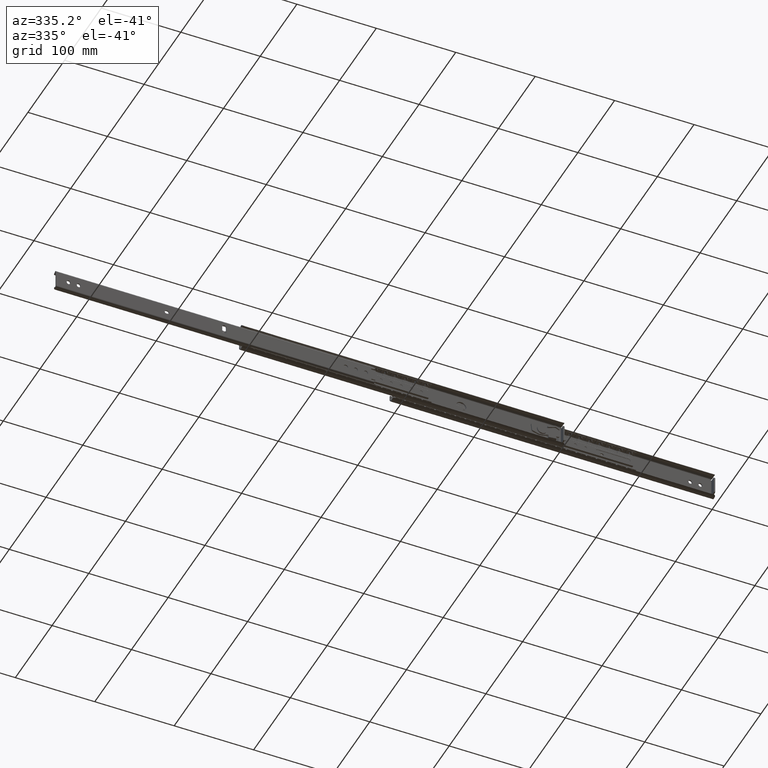
[diagram: clean part render]
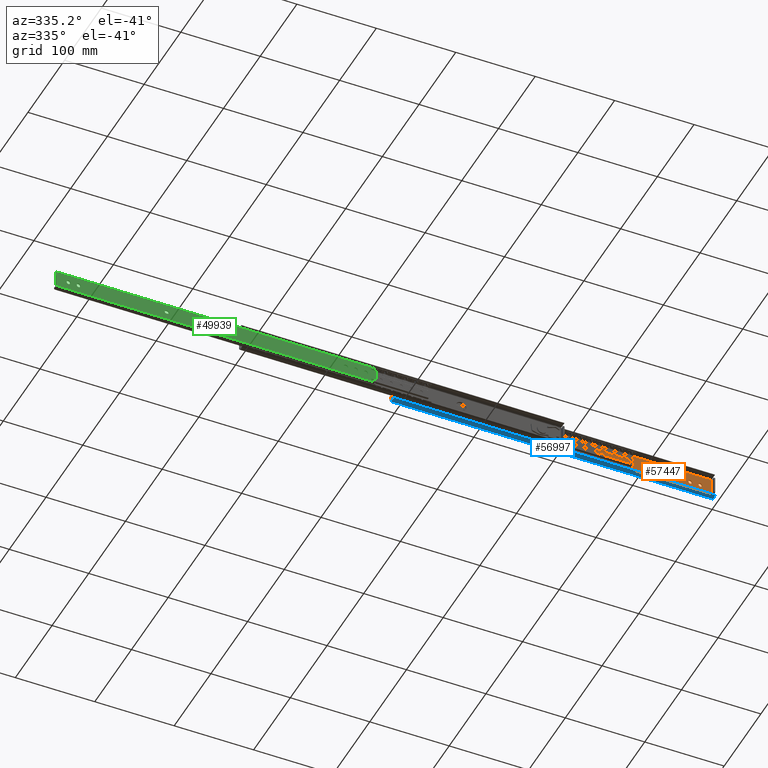
[diagram: same view with three faces highlighted in distinct colors, each labeled with its STEP entity id]
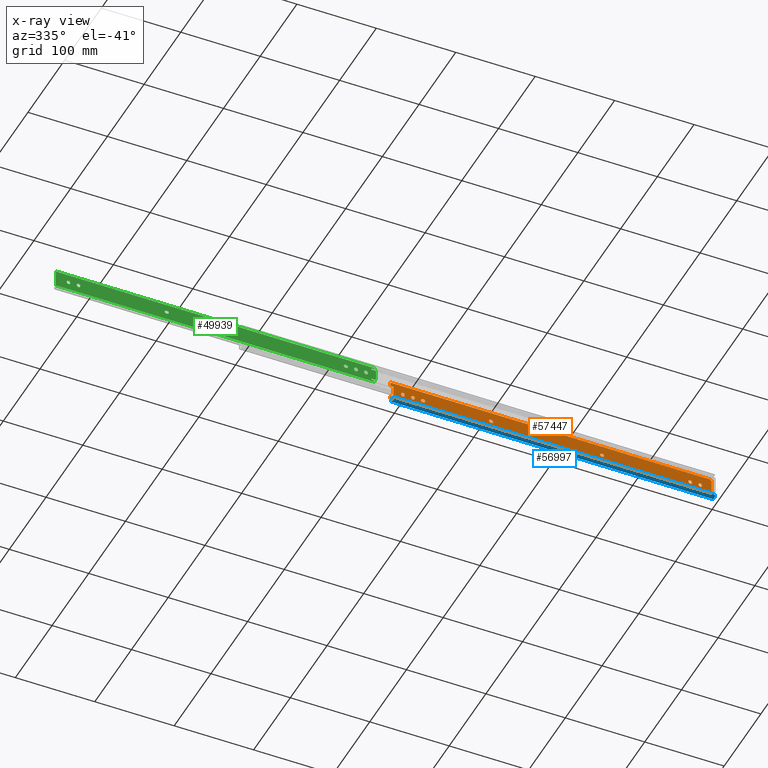
[diagram: x-ray of the same camera — body ghosted, the three highlighted faces saturated]
A machine part, auxiliary view with three faces highlighted in distinct colors.
The next image is the same camera in x-ray (body ghosted, the three faces saturated) — at least one of them is partly hidden behind the body in this view.
Their STEP definitions:

[orange] entity #57447 — the highlighted face is a freeform B-spline surface patch.
#54083=CARTESIAN_POINT('',(-1.600000000000045,-0.399999999999977,387.850000000000020));
#54084=VERTEX_POINT('',#54083);
#54099=CARTESIAN_POINT('',(-1.600000000000025,0.400000000000034,387.850000000000020));
#54100=VERTEX_POINT('',#54099);
#54106=CARTESIAN_POINT('',(-1.600000000000045,-0.399999999999977,387.850000000000020));
#54107=CARTESIAN_POINT('',(-1.600000000000025,0.400000000000034,387.850000000000020));
#54108=QUASI_UNIFORM_CURVE('',1,(#54106,#54107),.UNSPECIFIED.,.F.,.U.);
#54109=EDGE_CURVE('',#54084,#54100,#54108,.T.);
#54132=CARTESIAN_POINT('',(-1.600000000000045,-0.399999999999977,392.350000000000020));
#54133=VERTEX_POINT('',#54132);
#54157=CARTESIAN_POINT('',(-1.600000000000045,-0.399999999999977,392.350000000000020));
#54158=CARTESIAN_POINT('',(-1.600000000000045,-2.649999999999978,392.350000000000020));
#54159=CARTESIAN_POINT('',(-1.600000000000045,-2.649999999999977,390.100000000000020));
#54160=CARTESIAN_POINT('',(-1.600000000000045,-2.649999999999978,387.850000000000080));
#54161=CARTESIAN_POINT('',(-1.600000000000045,-0.399999999999977,387.850000000000020));
#54169=(BOUNDED_CURVE()B_SPLINE_CURVE(2,(#54157,#54158,#54159,#54160,#54161),.UNSPECIFIED.,.F.,.U.)B_SPLINE_CURVE_WITH_KNOTS((3,2,3),(0.0,0.500000000000000,1.0),.UNSPECIFIED.)CURVE()GEOMETRIC_REPRESENTATION_ITEM()RATIONAL_B_SPLINE_CURVE((1.0,0.707106781186547,1.0,0.707106781186547,1.0))REPRESENTATION_ITEM(''));
#54170=EDGE_CURVE('',#54133,#54084,#54169,.T.);
#54180=CARTESIAN_POINT('',(-1.600000000000045,0.400000000000034,392.350000000000020));
#54181=VERTEX_POINT('',#54180);
#54195=CARTESIAN_POINT('',(-1.600000000000045,0.400000000000034,392.350000000000020));
#54196=CARTESIAN_POINT('',(-1.600000000000045,-0.399999999999977,392.350000000000020));
#54197=QUASI_UNIFORM_CURVE('',1,(#54195,#54196),.UNSPECIFIED.,.F.,.U.);
#54198=EDGE_CURVE('',#54181,#54133,#54197,.T.);
#54238=CARTESIAN_POINT('',(-1.600000000000045,0.400000000000034,387.850000000000020));
#54239=CARTESIAN_POINT('',(-1.600000000000045,2.650000000000034,387.850000000000080));
#54240=CARTESIAN_POINT('',(-1.600000000000045,2.650000000000034,390.100000000000020));
#54241=CARTESIAN_POINT('',(-1.600000000000045,2.650000000000034,392.350000000000020));
#54242=CARTESIAN_POINT('',(-1.600000000000045,0.400000000000034,392.350000000000020));
#54250=(BOUNDED_CURVE()B_SPLINE_CURVE(2,(#54238,#54239,#54240,#54241,#54242),.UNSPECIFIED.,.F.,.U.)B_SPLINE_CURVE_WITH_KNOTS((3,2,3),(0.0,0.500000000000000,1.0),.UNSPECIFIED.)CURVE()GEOMETRIC_REPRESENTATION_ITEM()RATIONAL_B_SPLINE_CURVE((1.0,0.707106781186547,1.0,0.707106781186547,1.0))REPRESENTATION_ITEM(''));
#54251=EDGE_CURVE('',#54100,#54181,#54250,.T.);
#54261=CARTESIAN_POINT('',(-1.600000000000045,-0.399999999999977,375.149999999999980));
#54262=VERTEX_POINT('',#54261);
#54277=CARTESIAN_POINT('',(-1.600000000000025,0.400000000000034,375.149999999999980));
#54278=VERTEX_POINT('',#54277);
#54284=CARTESIAN_POINT('',(-1.600000000000045,-0.399999999999977,375.149999999999980));
#54285=CARTESIAN_POINT('',(-1.600000000000025,0.400000000000034,375.149999999999980));
#54286=QUASI_UNIFORM_CURVE('',1,(#54284,#54285),.UNSPECIFIED.,.F.,.U.);
#54287=EDGE_CURVE('',#54262,#54278,#54286,.T.);
#54310=CARTESIAN_POINT('',(-1.600000000000045,-0.399999999999977,379.649999999999980));
#54311=VERTEX_POINT('',#54310);
#54335=CARTESIAN_POINT('',(-1.600000000000045,-0.399999999999977,379.649999999999980));
#54336=CARTESIAN_POINT('',(-1.600000000000045,-2.649999999999978,379.650000000000090));
#54337=CARTESIAN_POINT('',(-1.600000000000045,-2.649999999999977,377.399999999999980));
#54338=CARTESIAN_POINT('',(-1.600000000000045,-2.649999999999978,375.150000000000090));
#54339=CARTESIAN_POINT('',(-1.600000000000045,-0.399999999999977,375.149999999999980));
#54347=(BOUNDED_CURVE()B_SPLINE_CURVE(2,(#54335,#54336,#54337,#54338,#54339),.UNSPECIFIED.,.F.,.U.)B_SPLINE_CURVE_WITH_KNOTS((3,2,3),(0.0,0.500000000000000,1.0),.UNSPECIFIED.)CURVE()GEOMETRIC_REPRESENTATION_ITEM()RATIONAL_B_SPLINE_CURVE((1.0,0.707106781186547,1.0,0.707106781186547,1.0))REPRESENTATION_ITEM(''));
#54348=EDGE_CURVE('',#54311,#54262,#54347,.T.);
#54358=CARTESIAN_POINT('',(-1.600000000000045,0.400000000000034,379.649999999999980));
#54359=VERTEX_POINT('',#54358);
#54373=CARTESIAN_POINT('',(-1.600000000000045,0.400000000000034,379.649999999999980));
#54374=CARTESIAN_POINT('',(-1.600000000000045,-0.399999999999977,379.649999999999980));
#54375=QUASI_UNIFORM_CURVE('',1,(#54373,#54374),.UNSPECIFIED.,.F.,.U.);
#54376=EDGE_CURVE('',#54359,#54311,#54375,.T.);
#54416=CARTESIAN_POINT('',(-1.600000000000045,0.400000000000034,375.149999999999980));
#54417=CARTESIAN_POINT('',(-1.600000000000045,2.650000000000034,375.150000000000090));
#54418=CARTESIAN_POINT('',(-1.600000000000045,2.650000000000034,377.399999999999980));
#54419=CARTESIAN_POINT('',(-1.600000000000045,2.650000000000034,379.650000000000090));
#54420=CARTESIAN_POINT('',(-1.600000000000045,0.400000000000034,379.649999999999980));
#54428=(BOUNDED_CURVE()B_SPLINE_CURVE(2,(#54416,#54417,#54418,#54419,#54420),.UNSPECIFIED.,.F.,.U.)B_SPLINE_CURVE_WITH_KNOTS((3,2,3),(0.0,0.500000000000000,1.0),.UNSPECIFIED.)CURVE()GEOMETRIC_REPRESENTATION_ITEM()RATIONAL_B_SPLINE_CURVE((1.0,0.707106781186547,1.0,0.707106781186547,1.0))REPRESENTATION_ITEM(''));
#54429=EDGE_CURVE('',#54278,#54359,#54428,.T.);
#54452=CARTESIAN_POINT('',(-1.600000000000045,-2.250000000000055,364.300000000000010));
#54453=VERTEX_POINT('',#54452);
#54478=CARTESIAN_POINT('',(-1.600000000000045,2.249999999999945,364.300000000000010));
#54479=VERTEX_POINT('',#54478);
#54485=CARTESIAN_POINT('',(-1.600000000000045,-2.250000000000057,364.300000000000010));
#54486=CARTESIAN_POINT('',(-1.600000000000045,-2.250000000000057,362.049999999999950));
#54487=CARTESIAN_POINT('',(-1.600000000000045,-5.684342E-014,362.050000000000010));
#54488=CARTESIAN_POINT('',(-1.600000000000045,2.249999999999944,362.049999999999950));
#54489=CARTESIAN_POINT('',(-1.600000000000045,2.249999999999943,364.300000000000010));
#54497=(BOUNDED_CURVE()B_SPLINE_CURVE(2,(#54485,#54486,#54487,#54488,#54489),.UNSPECIFIED.,.F.,.U.)B_SPLINE_CURVE_WITH_KNOTS((3,2,3),(0.0,0.500000000000000,1.0),.UNSPECIFIED.)CURVE()GEOMETRIC_REPRESENTATION_ITEM()RATIONAL_B_SPLINE_CURVE((1.0,0.707106781186547,1.0,0.707106781186547,1.0))REPRESENTATION_ITEM(''));
#54498=EDGE_CURVE('',#54453,#54479,#54497,.T.);
#54508=CARTESIAN_POINT('',(-1.600000000000045,2.249999999999945,365.100000000000020));
#54509=VERTEX_POINT('',#54508);
#54510=CARTESIAN_POINT('',(-1.600000000000045,2.249999999999945,365.100000000000020));
#54511=CARTESIAN_POINT('',(-1.600000000000045,2.249999999999945,364.300000000000010));
#54512=QUASI_UNIFORM_CURVE('',1,(#54510,#54511),.UNSPECIFIED.,.F.,.U.);
#54513=EDGE_CURVE('',#54509,#54479,#54512,.T.);
#54567=CARTESIAN_POINT('',(-1.600000000000045,-2.250000000000055,365.100000000000020));
#54568=VERTEX_POINT('',#54567);
#54574=CARTESIAN_POINT('',(-1.600000000000045,2.249999999999943,365.100000000000020));
#54575=CARTESIAN_POINT('',(-1.600000000000045,2.249999999999944,367.349999999999970));
#54576=CARTESIAN_POINT('',(-1.600000000000045,-5.684342E-014,367.350000000000020));
#54577=CARTESIAN_POINT('',(-1.600000000000045,-2.250000000000057,367.349999999999970));
#54578=CARTESIAN_POINT('',(-1.600000000000045,-2.250000000000057,365.100000000000020));
#54586=(BOUNDED_CURVE()B_SPLINE_CURVE(2,(#54574,#54575,#54576,#54577,#54578),.UNSPECIFIED.,.F.,.U.)B_SPLINE_CURVE_WITH_KNOTS((3,2,3),(0.0,0.500000000000000,1.0),.UNSPECIFIED.)CURVE()GEOMETRIC_REPRESENTATION_ITEM()RATIONAL_B_SPLINE_CURVE((1.0,0.707106781186547,1.0,0.707106781186547,1.0))REPRESENTATION_ITEM(''));
#54587=EDGE_CURVE('',#54509,#54568,#54586,.T.);
#54597=CARTESIAN_POINT('',(-1.600000000000045,-2.250000000000055,364.300000000000010));
#54598=CARTESIAN_POINT('',(-1.600000000000045,-2.250000000000055,365.100000000000020));
#54599=QUASI_UNIFORM_CURVE('',1,(#54597,#54598),.UNSPECIFIED.,.F.,.U.);
#54600=EDGE_CURVE('',#54453,#54568,#54599,.T.);
#54617=CARTESIAN_POINT('',(-1.600000000000045,2.249999999999970,278.600000000000020));
#54618=VERTEX_POINT('',#54617);
#54633=CARTESIAN_POINT('',(-1.600000000000025,2.249999999999975,279.399999999999980));
#54634=VERTEX_POINT('',#54633);
#54640=CARTESIAN_POINT('',(-1.600000000000045,2.249999999999970,278.600000000000020));
#54641=CARTESIAN_POINT('',(-1.600000000000025,2.249999999999975,279.399999999999980));
#54642=QUASI_UNIFORM_CURVE('',1,(#54640,#54641),.UNSPECIFIED.,.F.,.U.);
#54643=EDGE_CURVE('',#54618,#54634,#54642,.T.);
#54666=CARTESIAN_POINT('',(-1.600000000000045,-2.249999999999970,278.600000000000020));
#54667=VERTEX_POINT('',#54666);
#54691=CARTESIAN_POINT('',(-1.600000000000045,-2.250000000000028,278.600000000000020));
#54692=CARTESIAN_POINT('',(-1.600000000000045,-2.250000000000029,276.350000000000020));
#54693=CARTESIAN_POINT('',(-1.600000000000045,-2.842171E-014,276.350000000000020));
#54694=CARTESIAN_POINT('',(-1.600000000000045,2.249999999999972,276.350000000000020));
#54695=CARTESIAN_POINT('',(-1.600000000000045,2.249999999999971,278.600000000000020));
#54703=(BOUNDED_CURVE()B_SPLINE_CURVE(2,(#54691,#54692,#54693,#54694,#54695),.UNSPECIFIED.,.F.,.U.)B_SPLINE_CURVE_WITH_KNOTS((3,2,3),(0.0,0.500000000000000,1.0),.UNSPECIFIED.)CURVE()GEOMETRIC_REPRESENTATION_ITEM()RATIONAL_B_SPLINE_CURVE((1.0,0.707106781186547,1.0,0.707106781186547,1.0))REPRESENTATION_ITEM(''));
#54704=EDGE_CURVE('',#54667,#54618,#54703,.T.);
#54714=CARTESIAN_POINT('',(-1.600000000000045,-2.249999999999970,279.399999999999980));
#54715=VERTEX_POINT('',#54714);
#54729=CARTESIAN_POINT('',(-1.600000000000045,-2.249999999999970,279.399999999999980));
#54730=CARTESIAN_POINT('',(-1.600000000000045,-2.249999999999970,278.600000000000020));
#54731=QUASI_UNIFORM_CURVE('',1,(#54729,#54730),.UNSPECIFIED.,.F.,.U.);
#54732=EDGE_CURVE('',#54715,#54667,#54731,.T.);
#54772=CARTESIAN_POINT('',(-1.600000000000045,2.249999999999971,279.399999999999980));
#54773=CARTESIAN_POINT('',(-1.600000000000045,2.249999999999972,281.650000000000030));
#54774=CARTESIAN_POINT('',(-1.600000000000045,-2.842171E-014,281.649999999999980));
#54775=CARTESIAN_POINT('',(-1.600000000000045,-2.250000000000029,281.650000000000030));
#54776=CARTESIAN_POINT('',(-1.600000000000045,-2.250000000000028,279.399999999999980));
#54784=(BOUNDED_CURVE()B_SPLINE_CURVE(2,(#54772,#54773,#54774,#54775,#54776),.UNSPECIFIED.,.F.,.U.)B_SPLINE_CURVE_WITH_KNOTS((3,2,3),(0.0,0.500000000000000,1.0),.UNSPECIFIED.)CURVE()GEOMETRIC_REPRESENTATION_ITEM()RATIONAL_B_SPLINE_CURVE((1.0,0.707106781186547,1.0,0.707106781186547,1.0))REPRESENTATION_ITEM(''));
#54785=EDGE_CURVE('',#54634,#54715,#54784,.T.);
#54795=CARTESIAN_POINT('',(-1.600000000000045,2.249999999999970,138.900000000000010));
#54796=VERTEX_POINT('',#54795);
#54811=CARTESIAN_POINT('',(-1.600000000000025,2.249999999999975,139.699999999999990));
#54812=VERTEX_POINT('',#54811);
#54818=CARTESIAN_POINT('',(-1.600000000000045,2.249999999999970,138.900000000000010));
#54819=CARTESIAN_POINT('',(-1.600000000000025,2.249999999999975,139.699999999999990));
#54820=QUASI_UNIFORM_CURVE('',1,(#54818,#54819),.UNSPECIFIED.,.F.,.U.);
#54821=EDGE_CURVE('',#54796,#54812,#54820,.T.);
#54844=CARTESIAN_POINT('',(-1.600000000000045,-2.249999999999970,138.900000000000010));
#54845=VERTEX_POINT('',#54844);
#54869=CARTESIAN_POINT('',(-1.600000000000045,-2.250000000000028,138.900000000000010));
#54870=CARTESIAN_POINT('',(-1.600000000000045,-2.250000000000029,136.650000000000010));
#54871=CARTESIAN_POINT('',(-1.600000000000045,-2.842171E-014,136.650000000000010));
#54872=CARTESIAN_POINT('',(-1.600000000000045,2.249999999999972,136.650000000000010));
#54873=CARTESIAN_POINT('',(-1.600000000000045,2.249999999999971,138.900000000000010));
#54881=(BOUNDED_CURVE()B_SPLINE_CURVE(2,(#54869,#54870,#54871,#54872,#54873),.UNSPECIFIED.,.F.,.U.)B_SPLINE_CURVE_WITH_KNOTS((3,2,3),(0.0,0.500000000000000,1.0),.UNSPECIFIED.)CURVE()GEOMETRIC_REPRESENTATION_ITEM()RATIONAL_B_SPLINE_CURVE((1.0,0.707106781186547,1.0,0.707106781186547,1.0))REPRESENTATION_ITEM(''));
#54882=EDGE_CURVE('',#54845,#54796,#54881,.T.);
#54892=CARTESIAN_POINT('',(-1.600000000000045,-2.249999999999970,139.699999999999990));
#54893=VERTEX_POINT('',#54892);
#54907=CARTESIAN_POINT('',(-1.600000000000045,-2.249999999999970,139.699999999999990));
#54908=CARTESIAN_POINT('',(-1.600000000000045,-2.249999999999970,138.900000000000010));
#54909=QUASI_UNIFORM_CURVE('',1,(#54907,#54908),.UNSPECIFIED.,.F.,.U.);
#54910=EDGE_CURVE('',#54893,#54845,#54909,.T.);
#54950=CARTESIAN_POINT('',(-1.600000000000045,2.249999999999971,139.699999999999990));
#54951=CARTESIAN_POINT('',(-1.600000000000045,2.249999999999972,141.949999999999990));
#54952=CARTESIAN_POINT('',(-1.600000000000045,-2.842171E-014,141.949999999999990));
#54953=CARTESIAN_POINT('',(-1.600000000000045,-2.250000000000029,141.949999999999990));
#54954=CARTESIAN_POINT('',(-1.600000000000045,-2.250000000000028,139.699999999999990));
#54962=(BOUNDED_CURVE()B_SPLINE_CURVE(2,(#54950,#54951,#54952,#54953,#54954),.UNSPECIFIED.,.F.,.U.)B_SPLINE_CURVE_WITH_KNOTS((3,2,3),(0.0,0.500000000000000,1.0),.UNSPECIFIED.)CURVE()GEOMETRIC_REPRESENTATION_ITEM()RATIONAL_B_SPLINE_CURVE((1.0,0.707106781186547,1.0,0.707106781186547,1.0))REPRESENTATION_ITEM(''));
#54963=EDGE_CURVE('',#54812,#54893,#54962,.T.);
#54986=CARTESIAN_POINT('',(-1.600000000000045,0.400000000000091,25.949999999999999));
#54987=VERTEX_POINT('',#54986);
#55012=CARTESIAN_POINT('',(-1.600000000000045,0.400000000000091,30.449999999999999));
#55013=VERTEX_POINT('',#55012);
#55019=CARTESIAN_POINT('',(-1.600000000000045,0.400000000000091,25.949999999999999));
#55020=CARTESIAN_POINT('',(-1.600000000000045,2.650000000000091,25.950000000000003));
#55021=CARTESIAN_POINT('',(-1.600000000000045,2.650000000000091,28.199999999999999));
#55022=CARTESIAN_POINT('',(-1.600000000000045,2.650000000000091,30.449999999999999));
#55023=CARTESIAN_POINT('',(-1.600000000000045,0.400000000000091,30.449999999999999));
#55031=(BOUNDED_CURVE()B_SPLINE_CURVE(2,(#55019,#55020,#55021,#55022,#55023),.UNSPECIFIED.,.F.,.U.)B_SPLINE_CURVE_WITH_KNOTS((3,2,3),(0.0,0.500000000000000,1.0),.UNSPECIFIED.)CURVE()GEOMETRIC_REPRESENTATION_ITEM()RATIONAL_B_SPLINE_CURVE((1.0,0.707106781186547,1.0,0.707106781186547,1.0))REPRESENTATION_ITEM(''));
#55032=EDGE_CURVE('',#54987,#55013,#55031,.T.);
#55042=CARTESIAN_POINT('',(-1.600000000000045,-0.399999999999920,30.449999999999999));
#55043=VERTEX_POINT('',#55042);
#55044=CARTESIAN_POINT('',(-1.600000000000045,-0.399999999999920,30.449999999999999));
#55045=CARTESIAN_POINT('',(-1.600000000000045,0.400000000000091,30.449999999999999));
#55046=QUASI_UNIFORM_CURVE('',1,(#55044,#55045),.UNSPECIFIED.,.F.,.U.);
#55047=EDGE_CURVE('',#55043,#55013,#55046,.T.);
#55101=CARTESIAN_POINT('',(-1.600000000000045,-0.399999999999921,25.949999999999999));
#55102=VERTEX_POINT('',#55101);
#55108=CARTESIAN_POINT('',(-1.600000000000045,-0.399999999999920,30.449999999999999));
#55109=CARTESIAN_POINT('',(-1.600000000000045,-2.649999999999920,30.449999999999999));
#55110=CARTESIAN_POINT('',(-1.600000000000045,-2.649999999999920,28.199999999999999));
#55111=CARTESIAN_POINT('',(-1.600000000000045,-2.649999999999920,25.950000000000003));
#55112=CARTESIAN_POINT('',(-1.600000000000045,-0.399999999999920,25.949999999999999));
#55120=(BOUNDED_CURVE()B_SPLINE_CURVE(2,(#55108,#55109,#55110,#55111,#55112),.UNSPECIFIED.,.F.,.U.)B_SPLINE_CURVE_WITH_KNOTS((3,2,3),(0.0,0.500000000000000,1.0),.UNSPECIFIED.)CURVE()GEOMETRIC_REPRESENTATION_ITEM()RATIONAL_B_SPLINE_CURVE((1.0,0.707106781186547,1.0,0.707106781186547,1.0))REPRESENTATION_ITEM(''));
#55121=EDGE_CURVE('',#55043,#55102,#55120,.T.);
#55131=CARTESIAN_POINT('',(-1.600000000000045,0.400000000000091,25.949999999999999));
#55132=CARTESIAN_POINT('',(-1.600000000000045,-0.399999999999921,25.949999999999999));
#55133=QUASI_UNIFORM_CURVE('',1,(#55131,#55132),.UNSPECIFIED.,.F.,.U.);
#55134=EDGE_CURVE('',#54987,#55102,#55133,.T.);
#55164=CARTESIAN_POINT('',(-1.600000000000045,0.400000000000091,13.250000000000000));
#55165=VERTEX_POINT('',#55164);
#55190=CARTESIAN_POINT('',(-1.600000000000045,0.400000000000091,17.750000000000000));
#55191=VERTEX_POINT('',#55190);
#55197=CARTESIAN_POINT('',(-1.600000000000045,0.400000000000091,13.250000000000000));
#55198=CARTESIAN_POINT('',(-1.600000000000045,2.650000000000091,13.250000000000004));
#55199=CARTESIAN_POINT('',(-1.600000000000045,2.650000000000091,15.500000000000000));
#55200=CARTESIAN_POINT('',(-1.600000000000045,2.650000000000091,17.750000000000004));
#55201=CARTESIAN_POINT('',(-1.600000000000045,0.400000000000091,17.750000000000000));
#55209=(BOUNDED_CURVE()B_SPLINE_CURVE(2,(#55197,#55198,#55199,#55200,#55201),.UNSPECIFIED.,.F.,.U.)B_SPLINE_CURVE_WITH_KNOTS((3,2,3),(0.0,0.500000000000000,1.0),.UNSPECIFIED.)CURVE()GEOMETRIC_REPRESENTATION_ITEM()RATIONAL_B_SPLINE_CURVE((1.0,0.707106781186547,1.0,0.707106781186547,1.0))REPRESENTATION_ITEM(''));
#55210=EDGE_CURVE('',#55165,#55191,#55209,.T.);
#55220=CARTESIAN_POINT('',(-1.600000000000045,-0.399999999999920,17.750000000000000));
#55221=VERTEX_POINT('',#55220);
#55222=CARTESIAN_POINT('',(-1.600000000000045,-0.399999999999920,17.750000000000000));
#55223=CARTESIAN_POINT('',(-1.600000000000045,0.400000000000091,17.750000000000000));
#55224=QUASI_UNIFORM_CURVE('',1,(#55222,#55223),.UNSPECIFIED.,.F.,.U.);
#55225=EDGE_CURVE('',#55221,#55191,#55224,.T.);
#55279=CARTESIAN_POINT('',(-1.600000000000045,-0.399999999999921,13.250000000000000));
#55280=VERTEX_POINT('',#55279);
#55286=CARTESIAN_POINT('',(-1.600000000000045,-0.399999999999920,17.750000000000000));
#55287=CARTESIAN_POINT('',(-1.600000000000045,-2.649999999999920,17.750000000000004));
#55288=CARTESIAN_POINT('',(-1.600000000000045,-2.649999999999920,15.500000000000000));
#55289=CARTESIAN_POINT('',(-1.600000000000045,-2.649999999999920,13.250000000000004));
#55290=CARTESIAN_POINT('',(-1.600000000000045,-0.399999999999920,13.250000000000000));
#55298=(BOUNDED_CURVE()B_SPLINE_CURVE(2,(#55286,#55287,#55288,#55289,#55290),.UNSPECIFIED.,.F.,.U.)B_SPLINE_CURVE_WITH_KNOTS((3,2,3),(0.0,0.500000000000000,1.0),.UNSPECIFIED.)CURVE()GEOMETRIC_REPRESENTATION_ITEM()RATIONAL_B_SPLINE_CURVE((1.0,0.707106781186547,1.0,0.707106781186547,1.0))REPRESENTATION_ITEM(''));
#55299=EDGE_CURVE('',#55221,#55280,#55298,.T.);
#55309=CARTESIAN_POINT('',(-1.600000000000045,0.400000000000091,13.250000000000000));
#55310=CARTESIAN_POINT('',(-1.600000000000045,-0.399999999999921,13.250000000000000));
#55311=QUASI_UNIFORM_CURVE('',1,(#55309,#55310),.UNSPECIFIED.,.F.,.U.);
#55312=EDGE_CURVE('',#55165,#55280,#55311,.T.);
#55710=CARTESIAN_POINT('',(-1.600000000000045,7.500000000000000,403.500000000000000));
#55711=VERTEX_POINT('',#55710);
#55727=CARTESIAN_POINT('',(-1.600000000000045,-7.500000000000170,403.500000000000000));
#55728=VERTEX_POINT('',#55727);
#55863=CARTESIAN_POINT('',(-1.600000000000025,7.500000000000000,401.899999999999980));
#55864=VERTEX_POINT('',#55863);
#55865=CARTESIAN_POINT('',(-1.600000000000025,7.500000000000000,401.899999999999980));
#55866=CARTESIAN_POINT('',(-1.600000000000045,7.500000000000000,403.500000000000000));
#55867=QUASI_UNIFORM_CURVE('',1,(#55865,#55866),.UNSPECIFIED.,.F.,.U.);
#55868=EDGE_CURVE('',#55864,#55711,#55867,.T.);
#55889=CARTESIAN_POINT('',(-1.600000000000025,-7.500000000000000,401.899999999999980));
#55890=VERTEX_POINT('',#55889);
#55891=CARTESIAN_POINT('',(-1.600000000000045,-7.500000000000170,403.500000000000000));
#55892=CARTESIAN_POINT('',(-1.600000000000025,-7.500000000000000,401.899999999999980));
#55893=QUASI_UNIFORM_CURVE('',1,(#55891,#55892),.UNSPECIFIED.,.F.,.U.);
#55894=EDGE_CURVE('',#55728,#55890,#55893,.T.);
#55916=CARTESIAN_POINT('',(-1.600000000000025,7.500000000000000,401.899999999999980));
#55917=CARTESIAN_POINT('',(-1.600000000000025,-7.500000000000000,401.899999999999980));
#55918=QUASI_UNIFORM_CURVE('',1,(#55916,#55917),.UNSPECIFIED.,.F.,.U.);
#55919=EDGE_CURVE('',#55864,#55890,#55918,.T.);
#56073=CARTESIAN_POINT('',(-1.600000000000045,-11.500000000000000,1.600000000000000));
#56074=VERTEX_POINT('',#56073);
#56080=CARTESIAN_POINT('',(-1.600000000000045,11.500000000000000,1.600000000000000));
#56081=VERTEX_POINT('',#56080);
#56082=CARTESIAN_POINT('',(-1.600000000000045,-11.500000000000000,1.600000000000000));
#56083=CARTESIAN_POINT('',(-1.600000000000045,11.500000000000000,1.600000000000000));
#56084=QUASI_UNIFORM_CURVE('',1,(#56082,#56083),.UNSPECIFIED.,.F.,.U.);
#56085=EDGE_CURVE('',#56074,#56081,#56084,.T.);
#56103=CARTESIAN_POINT('',(-1.600000000000045,7.500000000000000,406.0));
#56104=VERTEX_POINT('',#56103);
#56105=CARTESIAN_POINT('',(-1.600000000000045,7.500000000000000,403.500000000000000));
#56106=CARTESIAN_POINT('',(-1.600000000000045,7.500000000000000,406.0));
#56107=QUASI_UNIFORM_CURVE('',1,(#56105,#56106),.UNSPECIFIED.,.F.,.U.);
#56108=EDGE_CURVE('',#55711,#56104,#56107,.T.);
#56133=CARTESIAN_POINT('',(-1.600000000000045,-7.500000000000170,406.0));
#56134=VERTEX_POINT('',#56133);
#56146=CARTESIAN_POINT('',(-1.600000000000045,-7.500000000000170,406.0));
#56147=CARTESIAN_POINT('',(-1.600000000000045,-7.500000000000170,403.500000000000000));
#56148=QUASI_UNIFORM_CURVE('',1,(#56146,#56147),.UNSPECIFIED.,.F.,.U.);
#56149=EDGE_CURVE('',#56134,#55728,#56148,.T.);
#56189=CARTESIAN_POINT('',(-1.600000000000045,-12.578915999999939,2.360134746260215));
#56190=VERTEX_POINT('',#56189);
#56198=CARTESIAN_POINT('',(-1.600000000000045,-12.578915999999939,2.360134746260213));
#56199=CARTESIAN_POINT('',(-1.600000000000045,-12.184613891433358,2.501066018639437));
#56200=CARTESIAN_POINT('',(-1.600000000000045,-11.842306945716681,2.259898584543122));
#56201=CARTESIAN_POINT('',(-1.600000000000045,-11.500000000000007,2.018731150446807));
#56202=CARTESIAN_POINT('',(-1.600000000000045,-11.500000000000000,1.600000000000030));
#56210=(BOUNDED_CURVE()B_SPLINE_CURVE(2,(#56198,#56199,#56200,#56201,#56202),.UNSPECIFIED.,.F.,.U.)B_SPLINE_CURVE_WITH_KNOTS((3,2,3),(0.0,0.500000000000000,1.0),.UNSPECIFIED.)CURVE()GEOMETRIC_REPRESENTATION_ITEM()RATIONAL_B_SPLINE_CURVE((1.0,0.887679040060806,1.0,0.887679040060806,1.0))REPRESENTATION_ITEM(''));
#56211=EDGE_CURVE('',#56190,#56074,#56210,.T.);
#56681=CARTESIAN_POINT('',(-1.600000000000050,12.578916000000040,2.360134746260190));
#56682=VERTEX_POINT('',#56681);
#56683=CARTESIAN_POINT('',(-1.600000000000045,11.500000000000000,1.600000000000000));
#56684=CARTESIAN_POINT('',(-1.600000000000045,11.499999999999998,2.018731150446806));
#56685=CARTESIAN_POINT('',(-1.600000000000045,11.842306945716709,2.259898584543119));
#56686=CARTESIAN_POINT('',(-1.600000000000045,12.184613891433427,2.501066018639431));
#56687=CARTESIAN_POINT('',(-1.600000000000050,12.578916000000040,2.360134746260190));
#56695=(BOUNDED_CURVE()B_SPLINE_CURVE(2,(#56683,#56684,#56685,#56686,#56687),.UNSPECIFIED.,.F.,.U.)B_SPLINE_CURVE_WITH_KNOTS((3,2,3),(0.0,0.500000000000000,1.0),.UNSPECIFIED.)CURVE()GEOMETRIC_REPRESENTATION_ITEM()RATIONAL_B_SPLINE_CURVE((1.0,0.887679040060792,1.0,0.887679040060792,1.0))REPRESENTATION_ITEM(''));
#56696=EDGE_CURVE('',#56081,#56682,#56695,.T.);
#56761=CARTESIAN_POINT('',(-1.600000000000025,12.578916000000040,406.0));
#56762=VERTEX_POINT('',#56761);
#56776=CARTESIAN_POINT('',(-1.600000000000045,7.500000000000000,406.0));
#56777=CARTESIAN_POINT('',(-1.600000000000025,12.578916000000040,406.0));
#56778=QUASI_UNIFORM_CURVE('',1,(#56776,#56777),.UNSPECIFIED.,.F.,.U.);
#56779=EDGE_CURVE('',#56104,#56762,#56778,.T.);
#57055=CARTESIAN_POINT('',(-1.600000000000050,12.578916000000040,2.360134746260190));
#57056=CARTESIAN_POINT('',(-1.600000000000025,12.578916000000040,406.0));
#57057=QUASI_UNIFORM_CURVE('',1,(#57055,#57056),.UNSPECIFIED.,.F.,.U.);
#57058=EDGE_CURVE('',#56682,#56762,#57057,.T.);
#57115=CARTESIAN_POINT('',(-1.600000000000045,-12.578915999999939,406.0));
#57116=VERTEX_POINT('',#57115);
#57130=CARTESIAN_POINT('',(-1.600000000000045,-12.578915999999939,2.360134746260215));
#57131=CARTESIAN_POINT('',(-1.600000000000045,-12.578915999999939,406.0));
#57132=QUASI_UNIFORM_CURVE('',1,(#57130,#57131),.UNSPECIFIED.,.F.,.U.);
#57133=EDGE_CURVE('',#56190,#57116,#57132,.T.);
#57316=CARTESIAN_POINT('',(-1.600000000000045,-12.578915999999939,406.0));
#57317=CARTESIAN_POINT('',(-1.600000000000045,-7.500000000000170,406.0));
#57318=QUASI_UNIFORM_CURVE('',1,(#57316,#57317),.UNSPECIFIED.,.F.,.U.);
#57319=EDGE_CURVE('',#57116,#56134,#57318,.T.);
#57386=CARTESIAN_POINT('',(-1.600000000000000,-13.835549333594001,-18.599779216194371));
#57387=CARTESIAN_POINT('',(-1.600000000000000,13.835548433879930,-18.599779216194371));
#57388=CARTESIAN_POINT('',(-1.600000000000000,-13.835549333594001,426.199790063047710));
#57389=CARTESIAN_POINT('',(-1.600000000000000,13.835548433879930,426.199790063047710));
#57390=B_SPLINE_SURFACE_WITH_KNOTS('',1,1,((#57386,#57388),(#57387,#57389)),.UNSPECIFIED.,.F.,.F.,.U.,(2,2),(2,2),(0.0,27.671097767473931),(0.0,444.799569279242010),.UNSPECIFIED.);
#57391=ORIENTED_EDGE('',*,*,#56149,.T.);
#57392=ORIENTED_EDGE('',*,*,#55894,.T.);
#57393=ORIENTED_EDGE('',*,*,#55919,.F.);
#57394=ORIENTED_EDGE('',*,*,#55868,.T.);
#57395=ORIENTED_EDGE('',*,*,#56108,.T.);
#57396=ORIENTED_EDGE('',*,*,#56779,.T.);
#57397=ORIENTED_EDGE('',*,*,#57058,.F.);
#57398=ORIENTED_EDGE('',*,*,#56696,.F.);
#57399=ORIENTED_EDGE('',*,*,#56085,.F.);
#57400=ORIENTED_EDGE('',*,*,#56211,.F.);
#57401=ORIENTED_EDGE('',*,*,#57133,.T.);
#57402=ORIENTED_EDGE('',*,*,#57319,.T.);
#57403=EDGE_LOOP('',(#57391,#57392,#57393,#57394,#57395,#57396,#57397,#57398,#57399,#57400,#57401,#57402));
#57404=FACE_OUTER_BOUND('',#57403,.T.);
#57405=ORIENTED_EDGE('',*,*,#54287,.T.);
#57406=ORIENTED_EDGE('',*,*,#54429,.T.);
#57407=ORIENTED_EDGE('',*,*,#54376,.T.);
#57408=ORIENTED_EDGE('',*,*,#54348,.T.);
#57409=EDGE_LOOP('',(#57405,#57406,#57407,#57408));
#57410=FACE_BOUND('',#57409,.T.);
#57411=ORIENTED_EDGE('',*,*,#55134,.F.);
#57412=ORIENTED_EDGE('',*,*,#55032,.T.);
#57413=ORIENTED_EDGE('',*,*,#55047,.F.);
#57414=ORIENTED_EDGE('',*,*,#55121,.T.);
#57415=EDGE_LOOP('',(#57411,#57412,#57413,#57414));
#57416=FACE_BOUND('',#57415,.T.);
#57417=ORIENTED_EDGE('',*,*,#54109,.T.);
#57418=ORIENTED_EDGE('',*,*,#54251,.T.);
#57419=ORIENTED_EDGE('',*,*,#54198,.T.);
#57420=ORIENTED_EDGE('',*,*,#54170,.T.);
#57421=EDGE_LOOP('',(#57417,#57418,#57419,#57420));
#57422=FACE_BOUND('',#57421,.T.);
#57423=ORIENTED_EDGE('',*,*,#55312,.F.);
#57424=ORIENTED_EDGE('',*,*,#55210,.T.);
#57425=ORIENTED_EDGE('',*,*,#55225,.F.);
#57426=ORIENTED_EDGE('',*,*,#55299,.T.);
#57427=EDGE_LOOP('',(#57423,#57424,#57425,#57426));
#57428=FACE_BOUND('',#57427,.T.);
#57429=ORIENTED_EDGE('',*,*,#54821,.T.);
#57430=ORIENTED_EDGE('',*,*,#54963,.T.);
#57431=ORIENTED_EDGE('',*,*,#54910,.T.);
#57432=ORIENTED_EDGE('',*,*,#54882,.T.);
#57433=EDGE_LOOP('',(#57429,#57430,#57431,#57432));
#57434=FACE_BOUND('',#57433,.T.);
#57435=ORIENTED_EDGE('',*,*,#54643,.T.);
#57436=ORIENTED_EDGE('',*,*,#54785,.T.);
#57437=ORIENTED_EDGE('',*,*,#54732,.T.);
#57438=ORIENTED_EDGE('',*,*,#54704,.T.);
#57439=EDGE_LOOP('',(#57435,#57436,#57437,#57438));
#57440=FACE_BOUND('',#57439,.T.);
#57441=ORIENTED_EDGE('',*,*,#54600,.F.);
#57442=ORIENTED_EDGE('',*,*,#54498,.T.);
#57443=ORIENTED_EDGE('',*,*,#54513,.F.);
#57444=ORIENTED_EDGE('',*,*,#54587,.T.);
#57445=EDGE_LOOP('',(#57441,#57442,#57443,#57444));
#57446=FACE_BOUND('',#57445,.T.);
#57447=ADVANCED_FACE('',(#57404,#57410,#57416,#57422,#57428,#57434,#57440,#57446),#57390,.F.);

[blue] entity #56997 — the highlighted face is a freeform B-spline surface patch.
#55372=CARTESIAN_POINT('',(-7.797361481443880,16.501614328666950,406.0));
#55373=VERTEX_POINT('',#55372);
#55379=CARTESIAN_POINT('',(-8.699999999999999,15.138563000000000,404.399999999999980));
#55380=VERTEX_POINT('',#55379);
#55381=CARTESIAN_POINT('',(-8.699999999999999,15.138563000000000,404.399999999999980));
#55382=CARTESIAN_POINT('',(-8.699999999999999,15.138563000000000,404.507510653572810));
#55383=CARTESIAN_POINT('',(-8.696078365942338,15.148546628419590,404.613197402550380));
#55384=CARTESIAN_POINT('',(-8.684205456892634,15.177753697955970,404.769101718829010));
#55385=CARTESIAN_POINT('',(-8.679235344827429,15.189876962639890,404.820628821410710));
#55386=CARTESIAN_POINT('',(-8.667076825851048,15.218958860897040,404.922779063553610));
#55387=CARTESIAN_POINT('',(-8.659862182525917,15.235973860708610,404.973457528383390));
#55388=CARTESIAN_POINT('',(-8.635068572374941,15.293049567586930,405.120714031824720));
#55389=CARTESIAN_POINT('',(-8.614272223775023,15.339377883525071,405.213730006022500));
#55390=CARTESIAN_POINT('',(-8.575229628311053,15.420602472359640,405.345528976045610));
#55391=CARTESIAN_POINT('',(-8.560804386766794,15.449821699886220,405.388390965988380));
#55392=CARTESIAN_POINT('',(-8.529370686739743,15.511326141312880,405.470226010815510));
#55393=CARTESIAN_POINT('',(-8.512430817788875,15.543485633997880,405.509084902269480));
#55394=CARTESIAN_POINT('',(-8.457633071133486,15.643828389948601,405.619664158131120));
#55395=CARTESIAN_POINT('',(-8.415838695405805,15.715845930874471,405.685439644988210));
#55396=CARTESIAN_POINT('',(-8.343364294244998,15.830767068307120,405.771909492941120));
#55397=CARTESIAN_POINT('',(-8.317829643622710,15.869798196113280,405.798342699306720));
#55398=CARTESIAN_POINT('',(-8.264384940957063,15.948310848709230,405.846116535770480));
#55399=CARTESIAN_POINT('',(-8.208411759235066,16.027518397095651,405.888982020076810));
#55400=CARTESIAN_POINT('',(-8.147098633524841,16.107761194241888,405.922322134837710));
#55401=CARTESIAN_POINT('',(-8.082936149693088,16.188374994257419,405.950932322626610));
#55402=CARTESIAN_POINT('',(-8.049386105507217,16.228898804542400,405.962849951998520));
#55403=CARTESIAN_POINT('',(-7.946348845887224,16.348385027066261,405.990993506157110));
#55404=CARTESIAN_POINT('',(-7.873837216251993,16.426097025331060,405.999999999999890));
#55405=CARTESIAN_POINT('',(-7.797361481443870,16.501614328666950,406.0));
#55406=B_SPLINE_CURVE_WITH_KNOTS('',3,(#55381,#55382,#55383,#55384,#55385,#55386,#55387,#55388,#55389,#55390,#55391,#55392,#55393,#55394,#55395,#55396,#55397,#55398,#55399,#55400,#55401,#55402,#55403,#55404,#55405),.UNSPECIFIED.,.F.,.U.,(4,2,2,2,2,2,2,2,2,1,2,2,4),(0.0,0.124999999999956,0.187499999999902,0.249999999999847,0.374999999999798,0.437499999999800,0.499999999999802,0.624999999999850,0.687499999999875,0.749999999999900,0.812499999999924,0.874999999999949,1.0),.UNSPECIFIED.);
#55407=EDGE_CURVE('',#55380,#55373,#55406,.T.);
#55652=CARTESIAN_POINT('',(-8.699999999999999,15.138563000000000,1.600000000000045));
#55653=VERTEX_POINT('',#55652);
#55659=CARTESIAN_POINT('',(-7.797361481443880,16.501614328666950,0.0));
#55660=VERTEX_POINT('',#55659);
#55661=CARTESIAN_POINT('',(-7.797361481443870,16.501614328666950,0.0));
#55662=CARTESIAN_POINT('',(-7.873805621332092,16.426128224287901,-2.507218E-016));
#55663=CARTESIAN_POINT('',(-7.946032538754694,16.348703276690511,0.009002832384425));
#55664=CARTESIAN_POINT('',(-8.048366695128292,16.230104814364719,0.036830949543186));
#55665=CARTESIAN_POINT('',(-8.081474872352219,16.190162409486408,0.048506877457404));
#55666=CARTESIAN_POINT('',(-8.145713987624593,16.109547295088859,0.076973599089423));
#55667=CARTESIAN_POINT('',(-8.176853519449407,16.068838561062140,0.093818588383614));
#55668=CARTESIAN_POINT('',(-8.265269615821017,15.948717804249389,0.151098758050687));
#55669=CARTESIAN_POINT('',(-8.318358805070286,15.870322937539640,0.198518523544638));
#55670=CARTESIAN_POINT('',(-8.390332623059994,15.756336050086031,0.284002479101513));
#55671=CARTESIAN_POINT('',(-8.413163642828291,15.718734330919670,0.315104723518231));
#55672=CARTESIAN_POINT('',(-8.455725429243151,15.646143124146850,0.381318532893934));
#55673=CARTESIAN_POINT('',(-8.475428088657791,15.611224698661070,0.416320743013426));
#55674=CARTESIAN_POINT('',(-8.530331846426453,15.510742340941510,0.526890388396829));
#55675=CARTESIAN_POINT('',(-8.561401120966140,15.449330065201829,0.608092769247938));
#55676=CARTESIAN_POINT('',(-8.614078442506337,15.339821609603851,0.785317936661124));
#55677=CARTESIAN_POINT('',(-8.634910334960294,15.293401310450880,0.878583728851636));
#55678=CARTESIAN_POINT('',(-8.659656058537436,15.236454519679320,1.025201495526434));
#55679=CARTESIAN_POINT('',(-8.666806422976922,15.219599340662800,1.075202396149671));
#55680=CARTESIAN_POINT('',(-8.679044047597431,15.190340587791921,1.177520125700919));
#55681=CARTESIAN_POINT('',(-8.684098712958685,15.178014943015381,1.229663612872516));
#55682=CARTESIAN_POINT('',(-8.696079285490200,15.148547015818860,1.386485090682235));
#55683=CARTESIAN_POINT('',(-8.700000152592871,15.138563060668790,1.492494589758614));
#55684=CARTESIAN_POINT('',(-8.699999999999999,15.138563000000000,1.600000000000045));
#55685=B_SPLINE_CURVE_WITH_KNOTS('',3,(#55661,#55662,#55663,#55664,#55665,#55666,#55667,#55668,#55669,#55670,#55671,#55672,#55673,#55674,#55675,#55676,#55677,#55678,#55679,#55680,#55681,#55682,#55683,#55684),.UNSPECIFIED.,.F.,.U.,(4,2,2,2,2,2,2,2,2,2,2,4),(0.0,0.124999999999999,0.187499999999998,0.249999999999996,0.374999999999993,0.437499999999994,0.499999999999994,0.624999999999995,0.749999999999996,0.812499999999997,0.874999999999998,1.0),.UNSPECIFIED.);
#55686=EDGE_CURVE('',#55660,#55653,#55685,.T.);
#56512=CARTESIAN_POINT('',(-1.884824599746925,16.147869559068798,-4.920117E-015));
#56513=VERTEX_POINT('',#56512);
#56519=CARTESIAN_POINT('',(-1.820942246821600,16.065402533108600,0.002126651732381));
#56520=VERTEX_POINT('',#56519);
#56521=CARTESIAN_POINT('',(-1.884824599746925,16.147869559068798,-4.920117E-015));
#56522=CARTESIAN_POINT('',(-1.863161321236234,16.120648236862539,3.859760E-014));
#56523=CARTESIAN_POINT('',(-1.841867322006735,16.093158756250752,0.000694154306489));
#56524=CARTESIAN_POINT('',(-1.820942246821600,16.065402533108600,0.002126651732381));
#56525=QUASI_UNIFORM_CURVE('',3,(#56521,#56522,#56523,#56524),.UNSPECIFIED.,.F.,.U.);
#56526=EDGE_CURVE('',#56513,#56520,#56525,.T.);
#56721=CARTESIAN_POINT('',(-1.820942246821600,16.065402533108600,406.0));
#56722=VERTEX_POINT('',#56721);
#56723=CARTESIAN_POINT('',(-1.820942246821556,16.065402533108632,406.0));
#56724=CARTESIAN_POINT('',(-2.908446470660658,17.507930678782589,406.000000000000060));
#56725=CARTESIAN_POINT('',(-4.710184207452268,17.639437392491370,406.0));
#56726=CARTESIAN_POINT('',(-6.511921944243879,17.770944106200151,406.000000000000060));
#56727=CARTESIAN_POINT('',(-7.797361481443921,16.501614328666989,406.0));
#56735=(BOUNDED_CURVE()B_SPLINE_CURVE(2,(#56723,#56724,#56725,#56726,#56727),.UNSPECIFIED.,.F.,.U.)B_SPLINE_CURVE_WITH_KNOTS((3,2,3),(0.0,0.500000000000000,1.0),.UNSPECIFIED.)CURVE()GEOMETRIC_REPRESENTATION_ITEM()RATIONAL_B_SPLINE_CURVE((1.0,0.910635851455389,1.0,0.910635851455389,1.0))REPRESENTATION_ITEM(''));
#56736=EDGE_CURVE('',#56722,#55373,#56735,.T.);
#56831=CARTESIAN_POINT('',(-1.884824599746925,16.147869559068798,-4.920117E-015));
#56832=CARTESIAN_POINT('',(-2.990223276974918,17.536875084912289,0.0));
#56833=CARTESIAN_POINT('',(-4.762228550385609,17.642893467496901,0.0));
#56834=CARTESIAN_POINT('',(-6.534233823796302,17.748911850081509,0.0));
#56835=CARTESIAN_POINT('',(-7.797361481443880,16.501614328666950,0.0));
#56843=(BOUNDED_CURVE()B_SPLINE_CURVE(2,(#56831,#56832,#56833,#56834,#56835),.UNSPECIFIED.,.F.,.U.)B_SPLINE_CURVE_WITH_KNOTS((3,2,3),(0.0,0.500000000000000,1.0),.UNSPECIFIED.)CURVE()GEOMETRIC_REPRESENTATION_ITEM()RATIONAL_B_SPLINE_CURVE((1.0,0.913323076196486,1.0,0.913323076196486,1.0))REPRESENTATION_ITEM(''));
#56844=EDGE_CURVE('',#56513,#55660,#56843,.T.);
#56956=CARTESIAN_POINT('',(-1.820942246821600,16.065402533108600,0.002126651732381));
#56957=CARTESIAN_POINT('',(-1.820942246821600,16.065402533108600,406.0));
#56958=QUASI_UNIFORM_CURVE('',1,(#56956,#56957),.UNSPECIFIED.,.F.,.U.);
#56959=EDGE_CURVE('',#56520,#56722,#56958,.T.);
#56970=CARTESIAN_POINT('',(-8.712685643791783,15.106218911970760,-10.150000000000020));
#56971=CARTESIAN_POINT('',(-8.712685643791783,15.106218911970760,416.403750000000120));
#56972=CARTESIAN_POINT('',(-5.951333555819276,22.238221676757210,-10.149999999999995));
#56973=CARTESIAN_POINT('',(-5.951333555819276,22.238221676757210,416.403750000000000));
#56974=CARTESIAN_POINT('',(-1.692985401299506,15.885505739020831,-10.150000000000020));
#56975=CARTESIAN_POINT('',(-1.692985401299506,15.885505739020831,416.403750000000120));
#56983=(BOUNDED_SURFACE()B_SPLINE_SURFACE(1,2,((#56970,#56972,#56974),(#56971,#56973,#56975)),.UNSPECIFIED.,.F.,.F.,.U.)B_SPLINE_SURFACE_WITH_KNOTS((2,2),(3,3),(0.0,426.553750000000090),(0.0,9.663527223809933),.UNSPECIFIED.)GEOMETRIC_REPRESENTATION_ITEM()RATIONAL_B_SPLINE_SURFACE(((1.0,0.461748613235034,1.0),(1.0,0.461748613235034,1.0)))REPRESENTATION_ITEM('')SURFACE());
#56984=ORIENTED_EDGE('',*,*,#56844,.T.);
#56985=ORIENTED_EDGE('',*,*,#55686,.T.);
#56986=CARTESIAN_POINT('',(-8.699999999999999,15.138563000000000,1.600000000000045));
#56987=CARTESIAN_POINT('',(-8.699999999999999,15.138563000000000,404.399999999999980));
#56988=QUASI_UNIFORM_CURVE('',1,(#56986,#56987),.UNSPECIFIED.,.F.,.U.);
#56989=EDGE_CURVE('',#55653,#55380,#56988,.T.);
#56990=ORIENTED_EDGE('',*,*,#56989,.T.);
#56991=ORIENTED_EDGE('',*,*,#55407,.T.);
#56992=ORIENTED_EDGE('',*,*,#56736,.F.);
#56993=ORIENTED_EDGE('',*,*,#56959,.F.);
#56994=ORIENTED_EDGE('',*,*,#56526,.F.);
#56995=EDGE_LOOP('',(#56984,#56985,#56990,#56991,#56992,#56993,#56994));
#56996=FACE_OUTER_BOUND('',#56995,.T.);
#56997=ADVANCED_FACE('',(#56996),#56983,.T.);

[green] entity #49939 — the highlighted face is a freeform B-spline surface patch.
#47433=CARTESIAN_POINT('',(-19.100000000000001,-0.399999999999807,816.849999999999910));
#47434=VERTEX_POINT('',#47433);
#47435=CARTESIAN_POINT('',(-19.100000000000001,-0.399999999999807,821.350000000000020));
#47436=VERTEX_POINT('',#47435);
#47437=CARTESIAN_POINT('',(-19.100000000000001,-0.399999999999807,816.850000000000020));
#47438=CARTESIAN_POINT('',(-19.099999999999991,-2.649999999999807,816.850000000000020));
#47439=CARTESIAN_POINT('',(-19.100000000000001,-2.649999999999806,819.100000000000020));
#47440=CARTESIAN_POINT('',(-19.099999999999991,-2.649999999999807,821.350000000000020));
#47441=CARTESIAN_POINT('',(-19.100000000000001,-0.399999999999807,821.350000000000020));
#47449=(BOUNDED_CURVE()B_SPLINE_CURVE(2,(#47437,#47438,#47439,#47440,#47441),.UNSPECIFIED.,.F.,.U.)B_SPLINE_CURVE_WITH_KNOTS((3,2,3),(0.0,0.500000000000000,1.0),.UNSPECIFIED.)CURVE()GEOMETRIC_REPRESENTATION_ITEM()RATIONAL_B_SPLINE_CURVE((1.0,0.707106781186547,1.0,0.707106781186547,1.0))REPRESENTATION_ITEM(''));
#47450=EDGE_CURVE('',#47434,#47436,#47449,.T.);
#47489=CARTESIAN_POINT('',(-19.100000000000001,0.400000000000205,816.849999999999910));
#47490=VERTEX_POINT('',#47489);
#47491=CARTESIAN_POINT('',(-19.100000000000001,0.400000000000205,816.849999999999910));
#47492=CARTESIAN_POINT('',(-19.100000000000001,-0.399999999999807,816.849999999999910));
#47493=QUASI_UNIFORM_CURVE('',1,(#47491,#47492),.UNSPECIFIED.,.F.,.U.);
#47494=EDGE_CURVE('',#47490,#47434,#47493,.T.);
#47530=CARTESIAN_POINT('',(-19.100000000000001,0.400000000000205,821.350000000000020));
#47531=VERTEX_POINT('',#47530);
#47532=CARTESIAN_POINT('',(-19.100000000000001,0.400000000000205,821.350000000000020));
#47533=CARTESIAN_POINT('',(-19.099999999999991,2.650000000000204,821.350000000000020));
#47534=CARTESIAN_POINT('',(-19.100000000000001,2.650000000000204,819.100000000000020));
#47535=CARTESIAN_POINT('',(-19.099999999999991,2.650000000000204,816.850000000000020));
#47536=CARTESIAN_POINT('',(-19.100000000000001,0.400000000000205,816.850000000000020));
#47544=(BOUNDED_CURVE()B_SPLINE_CURVE(2,(#47532,#47533,#47534,#47535,#47536),.UNSPECIFIED.,.F.,.U.)B_SPLINE_CURVE_WITH_KNOTS((3,2,3),(0.0,0.500000000000000,1.0),.UNSPECIFIED.)CURVE()GEOMETRIC_REPRESENTATION_ITEM()RATIONAL_B_SPLINE_CURVE((1.0,0.707106781186547,1.0,0.707106781186547,1.0))REPRESENTATION_ITEM(''));
#47545=EDGE_CURVE('',#47531,#47490,#47544,.T.);
#47578=CARTESIAN_POINT('',(-19.100000000000001,-0.399999999999807,821.350000000000020));
#47579=CARTESIAN_POINT('',(-19.100000000000001,0.400000000000205,821.350000000000020));
#47580=QUASI_UNIFORM_CURVE('',1,(#47578,#47579),.UNSPECIFIED.,.F.,.U.);
#47581=EDGE_CURVE('',#47436,#47531,#47580,.T.);
#47611=CARTESIAN_POINT('',(-19.100000000000001,-0.399999999999807,804.149999999999980));
#47612=VERTEX_POINT('',#47611);
#47613=CARTESIAN_POINT('',(-19.100000000000001,-0.399999999999807,808.649999999999980));
#47614=VERTEX_POINT('',#47613);
#47615=CARTESIAN_POINT('',(-19.100000000000001,-0.399999999999807,804.149999999999980));
#47616=CARTESIAN_POINT('',(-19.099999999999991,-2.649999999999807,804.149999999999980));
#47617=CARTESIAN_POINT('',(-19.100000000000001,-2.649999999999806,806.399999999999980));
#47618=CARTESIAN_POINT('',(-19.099999999999991,-2.649999999999807,808.649999999999860));
#47619=CARTESIAN_POINT('',(-19.100000000000001,-0.399999999999807,808.649999999999980));
#47627=(BOUNDED_CURVE()B_SPLINE_CURVE(2,(#47615,#47616,#47617,#47618,#47619),.UNSPECIFIED.,.F.,.U.)B_SPLINE_CURVE_WITH_KNOTS((3,2,3),(0.0,0.500000000000000,1.0),.UNSPECIFIED.)CURVE()GEOMETRIC_REPRESENTATION_ITEM()RATIONAL_B_SPLINE_CURVE((1.0,0.707106781186547,1.0,0.707106781186547,1.0))REPRESENTATION_ITEM(''));
#47628=EDGE_CURVE('',#47612,#47614,#47627,.T.);
#47667=CARTESIAN_POINT('',(-19.100000000000001,0.400000000000205,804.149999999999980));
#47668=VERTEX_POINT('',#47667);
#47669=CARTESIAN_POINT('',(-19.100000000000001,0.400000000000205,804.149999999999980));
#47670=CARTESIAN_POINT('',(-19.100000000000001,-0.399999999999807,804.149999999999980));
#47671=QUASI_UNIFORM_CURVE('',1,(#47669,#47670),.UNSPECIFIED.,.F.,.U.);
#47672=EDGE_CURVE('',#47668,#47612,#47671,.T.);
#47708=CARTESIAN_POINT('',(-19.100000000000001,0.400000000000205,808.649999999999980));
#47709=VERTEX_POINT('',#47708);
#47710=CARTESIAN_POINT('',(-19.100000000000001,0.400000000000205,808.649999999999980));
#47711=CARTESIAN_POINT('',(-19.099999999999991,2.650000000000204,808.649999999999860));
#47712=CARTESIAN_POINT('',(-19.100000000000001,2.650000000000204,806.399999999999980));
#47713=CARTESIAN_POINT('',(-19.099999999999991,2.650000000000204,804.149999999999980));
#47714=CARTESIAN_POINT('',(-19.100000000000001,0.400000000000205,804.149999999999980));
#47722=(BOUNDED_CURVE()B_SPLINE_CURVE(2,(#47710,#47711,#47712,#47713,#47714),.UNSPECIFIED.,.F.,.U.)B_SPLINE_CURVE_WITH_KNOTS((3,2,3),(0.0,0.500000000000000,1.0),.UNSPECIFIED.)CURVE()GEOMETRIC_REPRESENTATION_ITEM()RATIONAL_B_SPLINE_CURVE((1.0,0.707106781186547,1.0,0.707106781186547,1.0))REPRESENTATION_ITEM(''));
#47723=EDGE_CURVE('',#47709,#47668,#47722,.T.);
#47756=CARTESIAN_POINT('',(-19.100000000000001,-0.399999999999807,808.649999999999980));
#47757=CARTESIAN_POINT('',(-19.100000000000001,0.400000000000205,808.649999999999980));
#47758=QUASI_UNIFORM_CURVE('',1,(#47756,#47757),.UNSPECIFIED.,.F.,.U.);
#47759=EDGE_CURVE('',#47614,#47709,#47758,.T.);
#47789=CARTESIAN_POINT('',(-19.100000000000001,-2.249999999999860,695.699999999999930));
#47790=VERTEX_POINT('',#47789);
#47791=CARTESIAN_POINT('',(-19.100000000000001,2.250000000000140,695.699999999999930));
#47792=VERTEX_POINT('',#47791);
#47793=CARTESIAN_POINT('',(-19.100000000000001,-2.249999999999857,695.699999999999930));
#47794=CARTESIAN_POINT('',(-19.099999999999991,-2.249999999999857,697.949999999999820));
#47795=CARTESIAN_POINT('',(-19.100000000000001,1.421085E-013,697.949999999999930));
#47796=CARTESIAN_POINT('',(-19.099999999999991,2.250000000000142,697.949999999999820));
#47797=CARTESIAN_POINT('',(-19.100000000000001,2.250000000000142,695.699999999999930));
#47805=(BOUNDED_CURVE()B_SPLINE_CURVE(2,(#47793,#47794,#47795,#47796,#47797),.UNSPECIFIED.,.F.,.U.)B_SPLINE_CURVE_WITH_KNOTS((3,2,3),(0.0,0.500000000000000,1.0),.UNSPECIFIED.)CURVE()GEOMETRIC_REPRESENTATION_ITEM()RATIONAL_B_SPLINE_CURVE((1.0,0.707106781186547,1.0,0.707106781186547,1.0))REPRESENTATION_ITEM(''));
#47806=EDGE_CURVE('',#47790,#47792,#47805,.T.);
#47845=CARTESIAN_POINT('',(-19.100000000000001,-2.249999999999860,694.899999999999980));
#47846=VERTEX_POINT('',#47845);
#47847=CARTESIAN_POINT('',(-19.100000000000001,-2.249999999999860,694.899999999999980));
#47848=CARTESIAN_POINT('',(-19.100000000000001,-2.249999999999860,695.699999999999930));
#47849=QUASI_UNIFORM_CURVE('',1,(#47847,#47848),.UNSPECIFIED.,.F.,.U.);
#47850=EDGE_CURVE('',#47846,#47790,#47849,.T.);
#47886=CARTESIAN_POINT('',(-19.100000000000001,2.250000000000140,694.899999999999980));
#47887=VERTEX_POINT('',#47886);
#47888=CARTESIAN_POINT('',(-19.100000000000001,2.250000000000142,694.899999999999980));
#47889=CARTESIAN_POINT('',(-19.099999999999991,2.250000000000142,692.649999999999980));
#47890=CARTESIAN_POINT('',(-19.100000000000001,1.421085E-013,692.649999999999980));
#47891=CARTESIAN_POINT('',(-19.099999999999991,-2.249999999999857,692.649999999999980));
#47892=CARTESIAN_POINT('',(-19.100000000000001,-2.249999999999857,694.899999999999980));
#47900=(BOUNDED_CURVE()B_SPLINE_CURVE(2,(#47888,#47889,#47890,#47891,#47892),.UNSPECIFIED.,.F.,.U.)B_SPLINE_CURVE_WITH_KNOTS((3,2,3),(0.0,0.500000000000000,1.0),.UNSPECIFIED.)CURVE()GEOMETRIC_REPRESENTATION_ITEM()RATIONAL_B_SPLINE_CURVE((1.0,0.707106781186547,1.0,0.707106781186547,1.0))REPRESENTATION_ITEM(''));
#47901=EDGE_CURVE('',#47887,#47846,#47900,.T.);
#47934=CARTESIAN_POINT('',(-19.100000000000001,2.250000000000140,695.699999999999930));
#47935=CARTESIAN_POINT('',(-19.100000000000001,2.250000000000140,694.899999999999980));
#47936=QUASI_UNIFORM_CURVE('',1,(#47934,#47935),.UNSPECIFIED.,.F.,.U.);
#47937=EDGE_CURVE('',#47792,#47887,#47936,.T.);
#47967=CARTESIAN_POINT('',(-19.100000000000001,-3.749999999999830,620.500000000000000));
#47968=VERTEX_POINT('',#47967);
#47969=CARTESIAN_POINT('',(-19.100000000000001,-3.749999999999830,625.500000000000000));
#47970=VERTEX_POINT('',#47969);
#47971=CARTESIAN_POINT('',(-19.100000000000001,-3.749999999999830,620.500000000000000));
#47972=CARTESIAN_POINT('',(-19.100000000000001,-6.249999999999830,620.500000000000110));
#47973=CARTESIAN_POINT('',(-19.100000000000001,-6.249999999999830,623.0));
#47974=CARTESIAN_POINT('',(-19.100000000000001,-6.249999999999830,625.500000000000000));
#47975=CARTESIAN_POINT('',(-19.100000000000001,-3.749999999999830,625.500000000000000));
#47983=(BOUNDED_CURVE()B_SPLINE_CURVE(2,(#47971,#47972,#47973,#47974,#47975),.UNSPECIFIED.,.F.,.U.)B_SPLINE_CURVE_WITH_KNOTS((3,2,3),(0.0,0.500000000000000,1.0),.UNSPECIFIED.)CURVE()GEOMETRIC_REPRESENTATION_ITEM()RATIONAL_B_SPLINE_CURVE((1.0,0.707106781186548,1.0,0.707106781186548,1.0))REPRESENTATION_ITEM(''));
#47984=EDGE_CURVE('',#47968,#47970,#47983,.T.);
#48023=CARTESIAN_POINT('',(-19.100000000000001,3.750000000000145,620.500000000000000));
#48024=VERTEX_POINT('',#48023);
#48025=CARTESIAN_POINT('',(-19.100000000000001,3.750000000000145,620.500000000000000));
#48026=CARTESIAN_POINT('',(-19.100000000000001,-3.749999999999830,620.500000000000000));
#48027=QUASI_UNIFORM_CURVE('',1,(#48025,#48026),.UNSPECIFIED.,.F.,.U.);
#48028=EDGE_CURVE('',#48024,#47968,#48027,.T.);
#48064=CARTESIAN_POINT('',(-19.100000000000001,3.750000000000140,625.500000000000000));
#48065=VERTEX_POINT('',#48064);
#48066=CARTESIAN_POINT('',(-19.100000000000001,3.750000000000140,625.500000000000000));
#48067=CARTESIAN_POINT('',(-19.100000000000001,6.250000000000143,625.500000000000000));
#48068=CARTESIAN_POINT('',(-19.100000000000001,6.250000000000140,623.0));
#48069=CARTESIAN_POINT('',(-19.100000000000001,6.250000000000143,620.500000000000110));
#48070=CARTESIAN_POINT('',(-19.100000000000001,3.750000000000140,620.500000000000000));
#48078=(BOUNDED_CURVE()B_SPLINE_CURVE(2,(#48066,#48067,#48068,#48069,#48070),.UNSPECIFIED.,.F.,.U.)B_SPLINE_CURVE_WITH_KNOTS((3,2,3),(0.0,0.500000000000000,1.0),.UNSPECIFIED.)CURVE()GEOMETRIC_REPRESENTATION_ITEM()RATIONAL_B_SPLINE_CURVE((1.0,0.707106781186548,1.0,0.707106781186548,1.0))REPRESENTATION_ITEM(''));
#48079=EDGE_CURVE('',#48065,#48024,#48078,.T.);
#48112=CARTESIAN_POINT('',(-19.100000000000001,-3.749999999999830,625.500000000000000));
#48113=CARTESIAN_POINT('',(-19.100000000000001,3.750000000000140,625.500000000000000));
#48114=QUASI_UNIFORM_CURVE('',1,(#48112,#48113),.UNSPECIFIED.,.F.,.U.);
#48115=EDGE_CURVE('',#47970,#48065,#48114,.T.);
#48145=CARTESIAN_POINT('',(-19.100000000000001,2.250000000000115,469.500000000000000));
#48146=VERTEX_POINT('',#48145);
#48147=CARTESIAN_POINT('',(-19.100000000000001,-2.249999999999885,469.500000000000000));
#48148=VERTEX_POINT('',#48147);
#48149=CARTESIAN_POINT('',(-19.100000000000001,2.250000000000113,469.500000000000000));
#48150=CARTESIAN_POINT('',(-19.099999999999991,2.250000000000114,467.250000000000000));
#48151=CARTESIAN_POINT('',(-19.100000000000001,1.136868E-013,467.250000000000000));
#48152=CARTESIAN_POINT('',(-19.099999999999991,-2.249999999999886,467.250000000000000));
#48153=CARTESIAN_POINT('',(-19.100000000000001,-2.249999999999886,469.500000000000000));
#48161=(BOUNDED_CURVE()B_SPLINE_CURVE(2,(#48149,#48150,#48151,#48152,#48153),.UNSPECIFIED.,.F.,.U.)B_SPLINE_CURVE_WITH_KNOTS((3,2,3),(0.0,0.500000000000000,1.0),.UNSPECIFIED.)CURVE()GEOMETRIC_REPRESENTATION_ITEM()RATIONAL_B_SPLINE_CURVE((1.0,0.707106781186547,1.0,0.707106781186547,1.0))REPRESENTATION_ITEM(''));
#48162=EDGE_CURVE('',#48146,#48148,#48161,.T.);
#48201=CARTESIAN_POINT('',(-19.100000000000001,2.250000000000115,470.300000000000010));
#48202=VERTEX_POINT('',#48201);
#48203=CARTESIAN_POINT('',(-19.100000000000001,2.250000000000115,470.300000000000010));
#48204=CARTESIAN_POINT('',(-19.100000000000001,2.250000000000115,469.500000000000000));
#48205=QUASI_UNIFORM_CURVE('',1,(#48203,#48204),.UNSPECIFIED.,.F.,.U.);
#48206=EDGE_CURVE('',#48202,#48146,#48205,.T.);
#48242=CARTESIAN_POINT('',(-19.100000000000001,-2.249999999999885,470.300000000000010));
#48243=VERTEX_POINT('',#48242);
#48244=CARTESIAN_POINT('',(-19.100000000000001,-2.249999999999886,470.300000000000010));
#48245=CARTESIAN_POINT('',(-19.099999999999991,-2.249999999999886,472.550000000000010));
#48246=CARTESIAN_POINT('',(-19.100000000000001,1.136868E-013,472.550000000000010));
#48247=CARTESIAN_POINT('',(-19.099999999999991,2.250000000000114,472.550000000000010));
#48248=CARTESIAN_POINT('',(-19.100000000000001,2.250000000000113,470.300000000000010));
#48256=(BOUNDED_CURVE()B_SPLINE_CURVE(2,(#48244,#48245,#48246,#48247,#48248),.UNSPECIFIED.,.F.,.U.)B_SPLINE_CURVE_WITH_KNOTS((3,2,3),(0.0,0.500000000000000,1.0),.UNSPECIFIED.)CURVE()GEOMETRIC_REPRESENTATION_ITEM()RATIONAL_B_SPLINE_CURVE((1.0,0.707106781186547,1.0,0.707106781186547,1.0))REPRESENTATION_ITEM(''));
#48257=EDGE_CURVE('',#48243,#48202,#48256,.T.);
#48290=CARTESIAN_POINT('',(-19.100000000000001,-2.249999999999885,469.500000000000000));
#48291=CARTESIAN_POINT('',(-19.100000000000001,-2.249999999999885,470.300000000000010));
#48292=QUASI_UNIFORM_CURVE('',1,(#48290,#48291),.UNSPECIFIED.,.F.,.U.);
#48293=EDGE_CURVE('',#48148,#48243,#48292,.T.);
#48310=CARTESIAN_POINT('',(-19.100000000000001,0.400000000000121,454.950000000000100));
#48311=VERTEX_POINT('',#48310);
#48312=CARTESIAN_POINT('',(-19.100000000000001,-0.399999999999892,454.950000000000100));
#48313=VERTEX_POINT('',#48312);
#48314=CARTESIAN_POINT('',(-19.100000000000001,0.400000000000121,454.950000000000100));
#48315=CARTESIAN_POINT('',(-19.100000000000001,-0.399999999999892,454.950000000000100));
#48316=QUASI_UNIFORM_CURVE('',1,(#48314,#48315),.UNSPECIFIED.,.F.,.U.);
#48317=EDGE_CURVE('',#48311,#48313,#48316,.T.);
#48359=CARTESIAN_POINT('',(-19.100000000000001,0.400000000000119,459.450000000000100));
#48360=VERTEX_POINT('',#48359);
#48361=CARTESIAN_POINT('',(-19.100000000000001,0.400000000000119,459.449999999999990));
#48362=CARTESIAN_POINT('',(-19.099999999999991,2.650000000000119,459.450000000000050));
#48363=CARTESIAN_POINT('',(-19.100000000000001,2.650000000000119,457.199999999999990));
#48364=CARTESIAN_POINT('',(-19.099999999999991,2.650000000000119,454.950000000000050));
#48365=CARTESIAN_POINT('',(-19.100000000000001,0.400000000000119,454.950000000000100));
#48373=(BOUNDED_CURVE()B_SPLINE_CURVE(2,(#48361,#48362,#48363,#48364,#48365),.UNSPECIFIED.,.F.,.U.)B_SPLINE_CURVE_WITH_KNOTS((3,2,3),(0.0,0.500000000000000,1.0),.UNSPECIFIED.)CURVE()GEOMETRIC_REPRESENTATION_ITEM()RATIONAL_B_SPLINE_CURVE((1.0,0.707106781186547,1.0,0.707106781186547,1.0))REPRESENTATION_ITEM(''));
#48374=EDGE_CURVE('',#48360,#48311,#48373,.T.);
#48407=CARTESIAN_POINT('',(-19.100000000000001,-0.399999999999892,459.450000000000100));
#48408=VERTEX_POINT('',#48407);
#48409=CARTESIAN_POINT('',(-19.100000000000001,-0.399999999999892,459.450000000000100));
#48410=CARTESIAN_POINT('',(-19.100000000000001,0.400000000000119,459.450000000000100));
#48411=QUASI_UNIFORM_CURVE('',1,(#48409,#48410),.UNSPECIFIED.,.F.,.U.);
#48412=EDGE_CURVE('',#48408,#48360,#48411,.T.);
#48448=CARTESIAN_POINT('',(-19.100000000000001,-0.399999999999892,454.950000000000100));
#48449=CARTESIAN_POINT('',(-19.099999999999991,-2.649999999999892,454.950000000000050));
#48450=CARTESIAN_POINT('',(-19.100000000000001,-2.649999999999892,457.199999999999990));
#48451=CARTESIAN_POINT('',(-19.099999999999991,-2.649999999999892,459.450000000000050));
#48452=CARTESIAN_POINT('',(-19.100000000000001,-0.399999999999892,459.449999999999990));
#48460=(BOUNDED_CURVE()B_SPLINE_CURVE(2,(#48448,#48449,#48450,#48451,#48452),.UNSPECIFIED.,.F.,.U.)B_SPLINE_CURVE_WITH_KNOTS((3,2,3),(0.0,0.500000000000000,1.0),.UNSPECIFIED.)CURVE()GEOMETRIC_REPRESENTATION_ITEM()RATIONAL_B_SPLINE_CURVE((1.0,0.707106781186547,1.0,0.707106781186547,1.0))REPRESENTATION_ITEM(''));
#48461=EDGE_CURVE('',#48313,#48408,#48460,.T.);
#48501=CARTESIAN_POINT('',(-19.100000000000001,-0.399999999999892,442.250000000000000));
#48502=VERTEX_POINT('',#48501);
#48503=CARTESIAN_POINT('',(-19.100000000000001,-0.399999999999892,446.750000000000000));
#48504=VERTEX_POINT('',#48503);
#48505=CARTESIAN_POINT('',(-19.100000000000001,-0.399999999999892,442.250000000000110));
#48506=CARTESIAN_POINT('',(-19.099999999999991,-2.649999999999892,442.249999999999940));
#48507=CARTESIAN_POINT('',(-19.100000000000001,-2.649999999999892,444.500000000000000));
#48508=CARTESIAN_POINT('',(-19.099999999999991,-2.649999999999892,446.750000000000060));
#48509=CARTESIAN_POINT('',(-19.100000000000001,-0.399999999999892,446.750000000000000));
#48517=(BOUNDED_CURVE()B_SPLINE_CURVE(2,(#48505,#48506,#48507,#48508,#48509),.UNSPECIFIED.,.F.,.U.)B_SPLINE_CURVE_WITH_KNOTS((3,2,3),(0.0,0.500000000000000,1.0),.UNSPECIFIED.)CURVE()GEOMETRIC_REPRESENTATION_ITEM()RATIONAL_B_SPLINE_CURVE((1.0,0.707106781186547,1.0,0.707106781186547,1.0))REPRESENTATION_ITEM(''));
#48518=EDGE_CURVE('',#48502,#48504,#48517,.T.);
#48557=CARTESIAN_POINT('',(-19.100000000000001,0.400000000000120,442.250000000000000));
#48558=VERTEX_POINT('',#48557);
#48559=CARTESIAN_POINT('',(-19.100000000000001,0.400000000000120,442.250000000000000));
#48560=CARTESIAN_POINT('',(-19.100000000000001,-0.399999999999892,442.250000000000000));
#48561=QUASI_UNIFORM_CURVE('',1,(#48559,#48560),.UNSPECIFIED.,.F.,.U.);
#48562=EDGE_CURVE('',#48558,#48502,#48561,.T.);
#48598=CARTESIAN_POINT('',(-19.100000000000001,0.400000000000119,446.750000000000000));
#48599=VERTEX_POINT('',#48598);
#48600=CARTESIAN_POINT('',(-19.100000000000001,0.400000000000119,446.750000000000000));
#48601=CARTESIAN_POINT('',(-19.099999999999991,2.650000000000119,446.750000000000060));
#48602=CARTESIAN_POINT('',(-19.100000000000001,2.650000000000119,444.500000000000000));
#48603=CARTESIAN_POINT('',(-19.099999999999991,2.650000000000119,442.249999999999940));
#48604=CARTESIAN_POINT('',(-19.100000000000001,0.400000000000119,442.250000000000110));
#48612=(BOUNDED_CURVE()B_SPLINE_CURVE(2,(#48600,#48601,#48602,#48603,#48604),.UNSPECIFIED.,.F.,.U.)B_SPLINE_CURVE_WITH_KNOTS((3,2,3),(0.0,0.500000000000000,1.0),.UNSPECIFIED.)CURVE()GEOMETRIC_REPRESENTATION_ITEM()RATIONAL_B_SPLINE_CURVE((1.0,0.707106781186547,1.0,0.707106781186547,1.0))REPRESENTATION_ITEM(''));
#48613=EDGE_CURVE('',#48599,#48558,#48612,.T.);
#48646=CARTESIAN_POINT('',(-19.100000000000001,-0.399999999999892,446.750000000000000));
#48647=CARTESIAN_POINT('',(-19.100000000000001,0.400000000000119,446.750000000000000));
#48648=QUASI_UNIFORM_CURVE('',1,(#48646,#48647),.UNSPECIFIED.,.F.,.U.);
#48649=EDGE_CURVE('',#48504,#48599,#48648,.T.);
#48666=CARTESIAN_POINT('',(-19.100000000000001,7.000000000000310,437.250000000000000));
#48667=VERTEX_POINT('',#48666);
#48668=CARTESIAN_POINT('',(-19.100000000000001,7.000000000000310,433.500000000000000));
#48669=VERTEX_POINT('',#48668);
#48670=CARTESIAN_POINT('',(-19.100000000000001,7.000000000000310,437.250000000000000));
#48671=CARTESIAN_POINT('',(-19.100000000000001,7.000000000000310,433.500000000000000));
#48672=QUASI_UNIFORM_CURVE('',1,(#48670,#48671),.UNSPECIFIED.,.F.,.U.);
#48673=EDGE_CURVE('',#48667,#48669,#48672,.T.);
#48711=CARTESIAN_POINT('',(-19.100000000000001,5.500000000000110,432.0));
#48712=VERTEX_POINT('',#48711);
#48713=CARTESIAN_POINT('',(-19.100000000000001,7.000000000000110,433.500000000000000));
#48714=CARTESIAN_POINT('',(-19.100000000000001,7.000000000000111,432.000000000000060));
#48715=CARTESIAN_POINT('',(-19.100000000000001,5.500000000000110,432.0));
#48723=(BOUNDED_CURVE()B_SPLINE_CURVE(2,(#48713,#48714,#48715),.UNSPECIFIED.,.F.,.U.)CURVE()GEOMETRIC_REPRESENTATION_ITEM()QUASI_UNIFORM_CURVE()RATIONAL_B_SPLINE_CURVE((1.0,0.707106781186548,1.0))REPRESENTATION_ITEM(''));
#48724=EDGE_CURVE('',#48669,#48712,#48723,.T.);
#48771=CARTESIAN_POINT('',(-19.100000000000001,9.500000000000108,434.0));
#48772=VERTEX_POINT('',#48771);
#48778=CARTESIAN_POINT('',(-19.100000000000001,10.427061000000201,434.0));
#48779=VERTEX_POINT('',#48778);
#48780=CARTESIAN_POINT('',(-19.100000000000001,10.427061000000201,434.0));
#48781=CARTESIAN_POINT('',(-19.100000000000001,9.500000000000108,434.0));
#48782=QUASI_UNIFORM_CURVE('',1,(#48780,#48781),.UNSPECIFIED.,.F.,.U.);
#48783=EDGE_CURVE('',#48779,#48772,#48782,.T.);
#48815=CARTESIAN_POINT('',(-19.100000000000001,8.500000000000110,435.0));
#48816=VERTEX_POINT('',#48815);
#48817=CARTESIAN_POINT('',(-19.100000000000001,9.500000000000108,434.0));
#48818=CARTESIAN_POINT('',(-19.100000000000001,8.500000000000108,434.000000000000110));
#48819=CARTESIAN_POINT('',(-19.100000000000001,8.500000000000108,435.0));
#48827=(BOUNDED_CURVE()B_SPLINE_CURVE(2,(#48817,#48818,#48819),.UNSPECIFIED.,.F.,.U.)CURVE()GEOMETRIC_REPRESENTATION_ITEM()QUASI_UNIFORM_CURVE()RATIONAL_B_SPLINE_CURVE((1.0,0.707106781186548,1.0))REPRESENTATION_ITEM(''));
#48828=EDGE_CURVE('',#48772,#48816,#48827,.T.);
#48859=CARTESIAN_POINT('',(-19.100000000000001,8.500000000000110,437.250000000000000));
#48860=VERTEX_POINT('',#48859);
#48861=CARTESIAN_POINT('',(-19.100000000000001,8.500000000000110,435.0));
#48862=CARTESIAN_POINT('',(-19.100000000000001,8.500000000000110,437.250000000000000));
#48863=QUASI_UNIFORM_CURVE('',1,(#48861,#48862),.UNSPECIFIED.,.F.,.U.);
#48864=EDGE_CURVE('',#48816,#48860,#48863,.T.);
#48900=CARTESIAN_POINT('',(-19.100000000000001,7.000000000000110,437.250000000000000));
#48901=CARTESIAN_POINT('',(-19.100000000000001,7.000000000000111,437.999999999999940));
#48902=CARTESIAN_POINT('',(-19.100000000000001,7.750000000000110,438.0));
#48903=CARTESIAN_POINT('',(-19.100000000000001,8.500000000000110,437.999999999999940));
#48904=CARTESIAN_POINT('',(-19.100000000000001,8.500000000000110,437.250000000000000));
#48912=(BOUNDED_CURVE()B_SPLINE_CURVE(2,(#48900,#48901,#48902,#48903,#48904),.UNSPECIFIED.,.F.,.U.)B_SPLINE_CURVE_WITH_KNOTS((3,2,3),(0.0,0.500000000000000,1.0),.UNSPECIFIED.)CURVE()GEOMETRIC_REPRESENTATION_ITEM()RATIONAL_B_SPLINE_CURVE((1.0,0.707106781186548,1.0,0.707106781186548,1.0))REPRESENTATION_ITEM(''));
#48913=EDGE_CURVE('',#48667,#48860,#48912,.T.);
#48968=CARTESIAN_POINT('',(-19.100000000000001,-9.499999999999691,434.0));
#48969=VERTEX_POINT('',#48968);
#48970=CARTESIAN_POINT('',(-19.100000000000001,-10.427060999999981,434.0));
#48971=VERTEX_POINT('',#48970);
#48972=CARTESIAN_POINT('',(-19.100000000000001,-9.499999999999691,434.0));
#48973=CARTESIAN_POINT('',(-19.100000000000001,-10.427060999999981,434.0));
#48974=QUASI_UNIFORM_CURVE('',1,(#48972,#48973),.UNSPECIFIED.,.F.,.U.);
#48975=EDGE_CURVE('',#48969,#48971,#48974,.T.);
#49056=CARTESIAN_POINT('',(-19.100000000000001,-8.499999999999890,435.0));
#49057=VERTEX_POINT('',#49056);
#49058=CARTESIAN_POINT('',(-19.100000000000001,-8.499999999999693,435.0));
#49059=CARTESIAN_POINT('',(-19.100000000000001,-8.499999999999693,434.000000000000110));
#49060=CARTESIAN_POINT('',(-19.100000000000001,-9.499999999999691,434.0));
#49068=(BOUNDED_CURVE()B_SPLINE_CURVE(2,(#49058,#49059,#49060),.UNSPECIFIED.,.F.,.U.)CURVE()GEOMETRIC_REPRESENTATION_ITEM()QUASI_UNIFORM_CURVE()RATIONAL_B_SPLINE_CURVE((1.0,0.707106781186548,1.0))REPRESENTATION_ITEM(''));
#49069=EDGE_CURVE('',#49057,#48969,#49068,.T.);
#49100=CARTESIAN_POINT('',(-19.100000000000001,-8.499999999999691,437.250000000000000));
#49101=VERTEX_POINT('',#49100);
#49102=CARTESIAN_POINT('',(-19.100000000000001,-8.499999999999691,437.250000000000000));
#49103=CARTESIAN_POINT('',(-19.100000000000001,-8.499999999999890,435.0));
#49104=QUASI_UNIFORM_CURVE('',1,(#49102,#49103),.UNSPECIFIED.,.F.,.U.);
#49105=EDGE_CURVE('',#49101,#49057,#49104,.T.);
#49141=CARTESIAN_POINT('',(-19.100000000000001,-6.999999999999890,437.250000000000000));
#49142=VERTEX_POINT('',#49141);
#49143=CARTESIAN_POINT('',(-19.100000000000001,-8.499999999999691,437.250000000000000));
#49144=CARTESIAN_POINT('',(-19.100000000000001,-8.499999999999691,437.999999999999940));
#49145=CARTESIAN_POINT('',(-19.100000000000001,-7.749999999999690,438.0));
#49146=CARTESIAN_POINT('',(-19.100000000000001,-6.999999999999691,437.999999999999940));
#49147=CARTESIAN_POINT('',(-19.100000000000001,-6.999999999999691,437.250000000000000));
#49155=(BOUNDED_CURVE()B_SPLINE_CURVE(2,(#49143,#49144,#49145,#49146,#49147),.UNSPECIFIED.,.F.,.U.)B_SPLINE_CURVE_WITH_KNOTS((3,2,3),(0.0,0.500000000000000,1.0),.UNSPECIFIED.)CURVE()GEOMETRIC_REPRESENTATION_ITEM()RATIONAL_B_SPLINE_CURVE((1.0,0.707106781186548,1.0,0.707106781186548,1.0))REPRESENTATION_ITEM(''));
#49156=EDGE_CURVE('',#49101,#49142,#49155,.T.);
#49189=CARTESIAN_POINT('',(-19.100000000000001,-6.999999999999691,433.500000000000000));
#49190=VERTEX_POINT('',#49189);
#49191=CARTESIAN_POINT('',(-19.100000000000001,-6.999999999999691,433.500000000000000));
#49192=CARTESIAN_POINT('',(-19.100000000000001,-6.999999999999890,437.250000000000000));
#49193=QUASI_UNIFORM_CURVE('',1,(#49191,#49192),.UNSPECIFIED.,.F.,.U.);
#49194=EDGE_CURVE('',#49190,#49142,#49193,.T.);
#49226=CARTESIAN_POINT('',(-19.100000000000001,-5.499999999999690,432.0));
#49227=VERTEX_POINT('',#49226);
#49228=CARTESIAN_POINT('',(-19.100000000000001,-5.499999999999690,432.0));
#49229=CARTESIAN_POINT('',(-19.100000000000001,-6.999999999999691,432.000000000000060));
#49230=CARTESIAN_POINT('',(-19.100000000000001,-6.999999999999691,433.500000000000000));
#49238=(BOUNDED_CURVE()B_SPLINE_CURVE(2,(#49228,#49229,#49230),.UNSPECIFIED.,.F.,.U.)CURVE()GEOMETRIC_REPRESENTATION_ITEM()QUASI_UNIFORM_CURVE()RATIONAL_B_SPLINE_CURVE((1.0,0.707106781186548,1.0))REPRESENTATION_ITEM(''));
#49239=EDGE_CURVE('',#49227,#49190,#49238,.T.);
#49301=CARTESIAN_POINT('',(-19.100000000000001,10.427061000000201,835.0));
#49302=VERTEX_POINT('',#49301);
#49318=CARTESIAN_POINT('',(-19.100000000000001,-10.427060999999981,835.0));
#49319=VERTEX_POINT('',#49318);
#49320=CARTESIAN_POINT('',(-19.100000000000001,10.427061000000201,835.0));
#49321=CARTESIAN_POINT('',(-19.100000000000001,-10.427060999999981,835.0));
#49322=QUASI_UNIFORM_CURVE('',1,(#49320,#49321),.UNSPECIFIED.,.F.,.U.);
#49323=EDGE_CURVE('',#49302,#49319,#49322,.T.);
#49759=CARTESIAN_POINT('',(-19.100000000000001,5.500000000000110,432.0));
#49760=CARTESIAN_POINT('',(-19.100000000000001,-5.499999999999690,432.0));
#49761=QUASI_UNIFORM_CURVE('',1,(#49759,#49760),.UNSPECIFIED.,.F.,.U.);
#49762=EDGE_CURVE('',#48712,#49227,#49761,.T.);
#49857=CARTESIAN_POINT('',(-19.100000000000001,-10.427060999999981,434.0));
#49858=CARTESIAN_POINT('',(-19.100000000000001,-10.427060999999981,835.0));
#49859=QUASI_UNIFORM_CURVE('',1,(#49857,#49858),.UNSPECIFIED.,.F.,.U.);
#49860=EDGE_CURVE('',#48971,#49319,#49859,.T.);
#49870=CARTESIAN_POINT('',(-19.100000000000001,-11.468724549244230,411.870150781092210));
#49871=CARTESIAN_POINT('',(-19.100000000000001,-11.468724549244230,855.129860028210150));
#49872=CARTESIAN_POINT('',(-19.100000000000001,11.468724922145210,411.870150781092210));
#49873=CARTESIAN_POINT('',(-19.100000000000001,11.468724922145210,855.129860028210150));
#49874=B_SPLINE_SURFACE_WITH_KNOTS('',1,1,((#49870,#49872),(#49871,#49873)),.UNSPECIFIED.,.F.,.F.,.U.,(2,2),(2,2),(0.0,443.259709247117880),(0.0,22.937449471389449),.UNSPECIFIED.);
#49875=ORIENTED_EDGE('',*,*,#49069,.T.);
#49876=ORIENTED_EDGE('',*,*,#48975,.T.);
#49877=ORIENTED_EDGE('',*,*,#49860,.T.);
#49878=ORIENTED_EDGE('',*,*,#49323,.F.);
#49879=CARTESIAN_POINT('',(-19.100000000000001,10.427061000000201,434.0));
#49880=CARTESIAN_POINT('',(-19.100000000000001,10.427061000000201,835.0));
#49881=QUASI_UNIFORM_CURVE('',1,(#49879,#49880),.UNSPECIFIED.,.F.,.U.);
#49882=EDGE_CURVE('',#48779,#49302,#49881,.T.);
#49883=ORIENTED_EDGE('',*,*,#49882,.F.);
#49884=ORIENTED_EDGE('',*,*,#48783,.T.);
#49885=ORIENTED_EDGE('',*,*,#48828,.T.);
#49886=ORIENTED_EDGE('',*,*,#48864,.T.);
#49887=ORIENTED_EDGE('',*,*,#48913,.F.);
#49888=ORIENTED_EDGE('',*,*,#48673,.T.);
#49889=ORIENTED_EDGE('',*,*,#48724,.T.);
#49890=ORIENTED_EDGE('',*,*,#49762,.T.);
#49891=ORIENTED_EDGE('',*,*,#49239,.T.);
#49892=ORIENTED_EDGE('',*,*,#49194,.T.);
#49893=ORIENTED_EDGE('',*,*,#49156,.F.);
#49894=ORIENTED_EDGE('',*,*,#49105,.T.);
#49895=EDGE_LOOP('',(#49875,#49876,#49877,#49878,#49883,#49884,#49885,#49886,#49887,#49888,#49889,#49890,#49891,#49892,#49893,#49894));
#49896=FACE_OUTER_BOUND('',#49895,.T.);
#49897=ORIENTED_EDGE('',*,*,#47759,.F.);
#49898=ORIENTED_EDGE('',*,*,#47628,.F.);
#49899=ORIENTED_EDGE('',*,*,#47672,.F.);
#49900=ORIENTED_EDGE('',*,*,#47723,.F.);
#49901=EDGE_LOOP('',(#49897,#49898,#49899,#49900));
#49902=FACE_BOUND('',#49901,.T.);
#49903=ORIENTED_EDGE('',*,*,#47937,.F.);
#49904=ORIENTED_EDGE('',*,*,#47806,.F.);
#49905=ORIENTED_EDGE('',*,*,#47850,.F.);
#49906=ORIENTED_EDGE('',*,*,#47901,.F.);
#49907=EDGE_LOOP('',(#49903,#49904,#49905,#49906));
#49908=FACE_BOUND('',#49907,.T.);
#49909=ORIENTED_EDGE('',*,*,#48115,.F.);
#49910=ORIENTED_EDGE('',*,*,#47984,.F.);
#49911=ORIENTED_EDGE('',*,*,#48028,.F.);
#49912=ORIENTED_EDGE('',*,*,#48079,.F.);
#49913=EDGE_LOOP('',(#49909,#49910,#49911,#49912));
#49914=FACE_BOUND('',#49913,.T.);
#49915=ORIENTED_EDGE('',*,*,#48293,.F.);
#49916=ORIENTED_EDGE('',*,*,#48162,.F.);
#49917=ORIENTED_EDGE('',*,*,#48206,.F.);
#49918=ORIENTED_EDGE('',*,*,#48257,.F.);
#49919=EDGE_LOOP('',(#49915,#49916,#49917,#49918));
#49920=FACE_BOUND('',#49919,.T.);
#49921=ORIENTED_EDGE('',*,*,#48461,.F.);
#49922=ORIENTED_EDGE('',*,*,#48317,.F.);
#49923=ORIENTED_EDGE('',*,*,#48374,.F.);
#49924=ORIENTED_EDGE('',*,*,#48412,.F.);
#49925=EDGE_LOOP('',(#49921,#49922,#49923,#49924));
#49926=FACE_BOUND('',#49925,.T.);
#49927=ORIENTED_EDGE('',*,*,#48649,.F.);
#49928=ORIENTED_EDGE('',*,*,#48518,.F.);
#49929=ORIENTED_EDGE('',*,*,#48562,.F.);
#49930=ORIENTED_EDGE('',*,*,#48613,.F.);
#49931=EDGE_LOOP('',(#49927,#49928,#49929,#49930));
#49932=FACE_BOUND('',#49931,.T.);
#49933=ORIENTED_EDGE('',*,*,#47581,.F.);
#49934=ORIENTED_EDGE('',*,*,#47450,.F.);
#49935=ORIENTED_EDGE('',*,*,#47494,.F.);
#49936=ORIENTED_EDGE('',*,*,#47545,.F.);
#49937=EDGE_LOOP('',(#49933,#49934,#49935,#49936));
#49938=FACE_BOUND('',#49937,.T.);
#49939=ADVANCED_FACE('',(#49896,#49902,#49908,#49914,#49920,#49926,#49932,#49938),#49874,.T.);